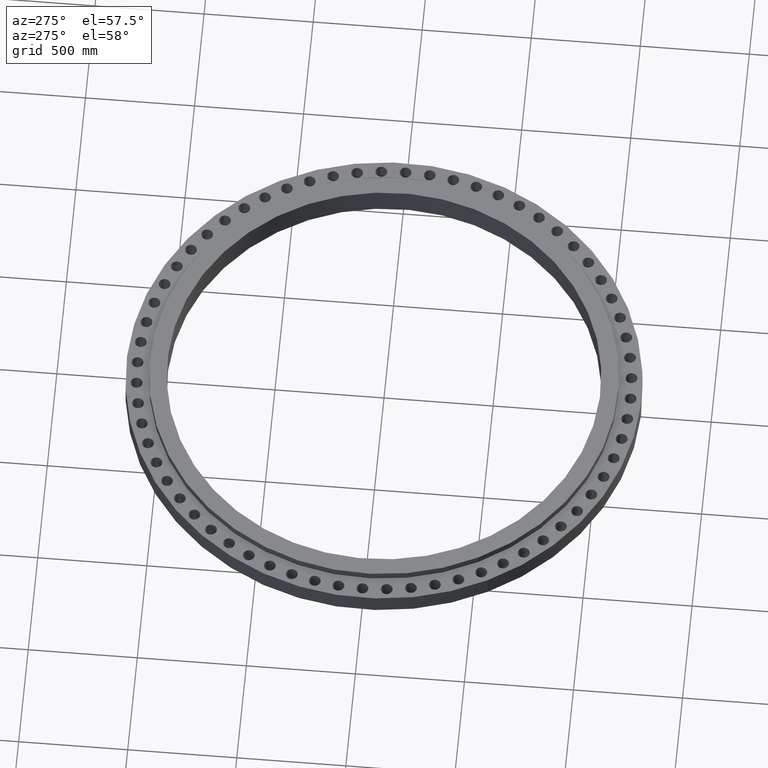
[diagram: clean part render]
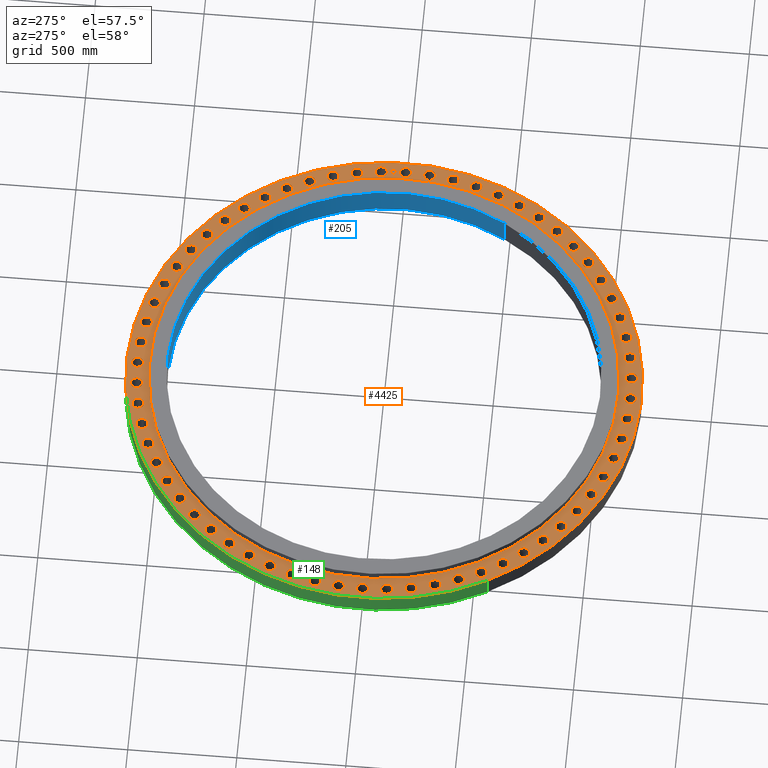
[diagram: same view with three faces highlighted in distinct colors, each labeled with its STEP entity id]
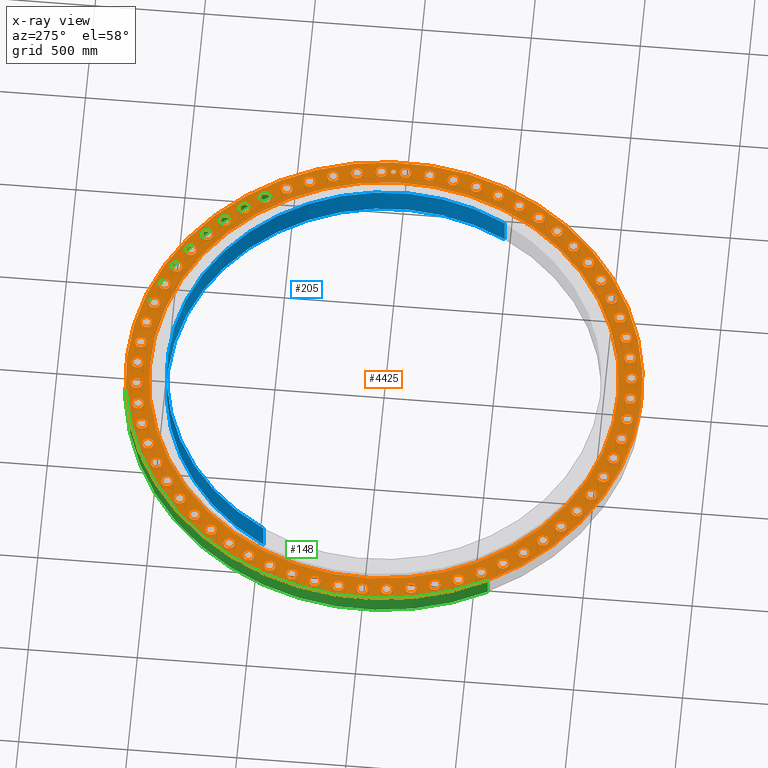
[diagram: x-ray of the same camera — body ghosted, the three highlighted faces saturated]
A machine part, auxiliary view with three faces highlighted in distinct colors.
The next image is the same camera in x-ray (body ghosted, the three faces saturated) — at least one of them is partly hidden behind the body in this view.
Their STEP definitions:

[orange] entity #4425 — the highlighted planar face has unit normal (0, 0, 1).
#65=AXIS2_PLACEMENT_3D('Circle Axis2P3D',#63,#64,$) ;
#82=AXIS2_PLACEMENT_3D('Circle Axis2P3D',#80,#81,$) ;
#108=AXIS2_PLACEMENT_3D('Circle Axis2P3D',#106,#107,$) ;
#134=AXIS2_PLACEMENT_3D('Circle Axis2P3D',#132,#133,$) ;
#255=AXIS2_PLACEMENT_3D('Circle Axis2P3D',#253,#254,$) ;
#267=AXIS2_PLACEMENT_3D('Circle Axis2P3D',#265,#266,$) ;
#1450=AXIS2_PLACEMENT_3D('Circle Axis2P3D',#1448,#1449,$) ;
#1462=AXIS2_PLACEMENT_3D('Circle Axis2P3D',#1460,#1461,$) ;
#1493=AXIS2_PLACEMENT_3D('Circle Axis2P3D',#1491,#1492,$) ;
#1505=AXIS2_PLACEMENT_3D('Circle Axis2P3D',#1503,#1504,$) ;
#1536=AXIS2_PLACEMENT_3D('Circle Axis2P3D',#1534,#1535,$) ;
#1548=AXIS2_PLACEMENT_3D('Circle Axis2P3D',#1546,#1547,$) ;
#1579=AXIS2_PLACEMENT_3D('Circle Axis2P3D',#1577,#1578,$) ;
#1591=AXIS2_PLACEMENT_3D('Circle Axis2P3D',#1589,#1590,$) ;
#1622=AXIS2_PLACEMENT_3D('Circle Axis2P3D',#1620,#1621,$) ;
#1634=AXIS2_PLACEMENT_3D('Circle Axis2P3D',#1632,#1633,$) ;
#1665=AXIS2_PLACEMENT_3D('Circle Axis2P3D',#1663,#1664,$) ;
#1677=AXIS2_PLACEMENT_3D('Circle Axis2P3D',#1675,#1676,$) ;
#1708=AXIS2_PLACEMENT_3D('Circle Axis2P3D',#1706,#1707,$) ;
#1720=AXIS2_PLACEMENT_3D('Circle Axis2P3D',#1718,#1719,$) ;
#1751=AXIS2_PLACEMENT_3D('Circle Axis2P3D',#1749,#1750,$) ;
#1763=AXIS2_PLACEMENT_3D('Circle Axis2P3D',#1761,#1762,$) ;
#1794=AXIS2_PLACEMENT_3D('Circle Axis2P3D',#1792,#1793,$) ;
#1806=AXIS2_PLACEMENT_3D('Circle Axis2P3D',#1804,#1805,$) ;
#1837=AXIS2_PLACEMENT_3D('Circle Axis2P3D',#1835,#1836,$) ;
#1849=AXIS2_PLACEMENT_3D('Circle Axis2P3D',#1847,#1848,$) ;
#1880=AXIS2_PLACEMENT_3D('Circle Axis2P3D',#1878,#1879,$) ;
#1892=AXIS2_PLACEMENT_3D('Circle Axis2P3D',#1890,#1891,$) ;
#1923=AXIS2_PLACEMENT_3D('Circle Axis2P3D',#1921,#1922,$) ;
#1935=AXIS2_PLACEMENT_3D('Circle Axis2P3D',#1933,#1934,$) ;
#1966=AXIS2_PLACEMENT_3D('Circle Axis2P3D',#1964,#1965,$) ;
#1978=AXIS2_PLACEMENT_3D('Circle Axis2P3D',#1976,#1977,$) ;
#2009=AXIS2_PLACEMENT_3D('Circle Axis2P3D',#2007,#2008,$) ;
#2021=AXIS2_PLACEMENT_3D('Circle Axis2P3D',#2019,#2020,$) ;
#2052=AXIS2_PLACEMENT_3D('Circle Axis2P3D',#2050,#2051,$) ;
#2064=AXIS2_PLACEMENT_3D('Circle Axis2P3D',#2062,#2063,$) ;
#2095=AXIS2_PLACEMENT_3D('Circle Axis2P3D',#2093,#2094,$) ;
#2107=AXIS2_PLACEMENT_3D('Circle Axis2P3D',#2105,#2106,$) ;
#2138=AXIS2_PLACEMENT_3D('Circle Axis2P3D',#2136,#2137,$) ;
#2150=AXIS2_PLACEMENT_3D('Circle Axis2P3D',#2148,#2149,$) ;
#2181=AXIS2_PLACEMENT_3D('Circle Axis2P3D',#2179,#2180,$) ;
#2193=AXIS2_PLACEMENT_3D('Circle Axis2P3D',#2191,#2192,$) ;
#2224=AXIS2_PLACEMENT_3D('Circle Axis2P3D',#2222,#2223,$) ;
#2236=AXIS2_PLACEMENT_3D('Circle Axis2P3D',#2234,#2235,$) ;
#2267=AXIS2_PLACEMENT_3D('Circle Axis2P3D',#2265,#2266,$) ;
#2279=AXIS2_PLACEMENT_3D('Circle Axis2P3D',#2277,#2278,$) ;
#2310=AXIS2_PLACEMENT_3D('Circle Axis2P3D',#2308,#2309,$) ;
#2322=AXIS2_PLACEMENT_3D('Circle Axis2P3D',#2320,#2321,$) ;
#2353=AXIS2_PLACEMENT_3D('Circle Axis2P3D',#2351,#2352,$) ;
#2365=AXIS2_PLACEMENT_3D('Circle Axis2P3D',#2363,#2364,$) ;
#2396=AXIS2_PLACEMENT_3D('Circle Axis2P3D',#2394,#2395,$) ;
#2408=AXIS2_PLACEMENT_3D('Circle Axis2P3D',#2406,#2407,$) ;
#2439=AXIS2_PLACEMENT_3D('Circle Axis2P3D',#2437,#2438,$) ;
#2451=AXIS2_PLACEMENT_3D('Circle Axis2P3D',#2449,#2450,$) ;
#2482=AXIS2_PLACEMENT_3D('Circle Axis2P3D',#2480,#2481,$) ;
#2494=AXIS2_PLACEMENT_3D('Circle Axis2P3D',#2492,#2493,$) ;
#2525=AXIS2_PLACEMENT_3D('Circle Axis2P3D',#2523,#2524,$) ;
#2537=AXIS2_PLACEMENT_3D('Circle Axis2P3D',#2535,#2536,$) ;
#2568=AXIS2_PLACEMENT_3D('Circle Axis2P3D',#2566,#2567,$) ;
#2580=AXIS2_PLACEMENT_3D('Circle Axis2P3D',#2578,#2579,$) ;
#2611=AXIS2_PLACEMENT_3D('Circle Axis2P3D',#2609,#2610,$) ;
#2623=AXIS2_PLACEMENT_3D('Circle Axis2P3D',#2621,#2622,$) ;
#2654=AXIS2_PLACEMENT_3D('Circle Axis2P3D',#2652,#2653,$) ;
#2666=AXIS2_PLACEMENT_3D('Circle Axis2P3D',#2664,#2665,$) ;
#2697=AXIS2_PLACEMENT_3D('Circle Axis2P3D',#2695,#2696,$) ;
#2709=AXIS2_PLACEMENT_3D('Circle Axis2P3D',#2707,#2708,$) ;
#2740=AXIS2_PLACEMENT_3D('Circle Axis2P3D',#2738,#2739,$) ;
#2752=AXIS2_PLACEMENT_3D('Circle Axis2P3D',#2750,#2751,$) ;
#2783=AXIS2_PLACEMENT_3D('Circle Axis2P3D',#2781,#2782,$) ;
#2795=AXIS2_PLACEMENT_3D('Circle Axis2P3D',#2793,#2794,$) ;
#2826=AXIS2_PLACEMENT_3D('Circle Axis2P3D',#2824,#2825,$) ;
#2838=AXIS2_PLACEMENT_3D('Circle Axis2P3D',#2836,#2837,$) ;
#2869=AXIS2_PLACEMENT_3D('Circle Axis2P3D',#2867,#2868,$) ;
#2881=AXIS2_PLACEMENT_3D('Circle Axis2P3D',#2879,#2880,$) ;
#2912=AXIS2_PLACEMENT_3D('Circle Axis2P3D',#2910,#2911,$) ;
#2924=AXIS2_PLACEMENT_3D('Circle Axis2P3D',#2922,#2923,$) ;
#2955=AXIS2_PLACEMENT_3D('Circle Axis2P3D',#2953,#2954,$) ;
#2967=AXIS2_PLACEMENT_3D('Circle Axis2P3D',#2965,#2966,$) ;
#2998=AXIS2_PLACEMENT_3D('Circle Axis2P3D',#2996,#2997,$) ;
#3010=AXIS2_PLACEMENT_3D('Circle Axis2P3D',#3008,#3009,$) ;
#3041=AXIS2_PLACEMENT_3D('Circle Axis2P3D',#3039,#3040,$) ;
#3053=AXIS2_PLACEMENT_3D('Circle Axis2P3D',#3051,#3052,$) ;
#3084=AXIS2_PLACEMENT_3D('Circle Axis2P3D',#3082,#3083,$) ;
#3096=AXIS2_PLACEMENT_3D('Circle Axis2P3D',#3094,#3095,$) ;
#3127=AXIS2_PLACEMENT_3D('Circle Axis2P3D',#3125,#3126,$) ;
#3139=AXIS2_PLACEMENT_3D('Circle Axis2P3D',#3137,#3138,$) ;
#3170=AXIS2_PLACEMENT_3D('Circle Axis2P3D',#3168,#3169,$) ;
#3182=AXIS2_PLACEMENT_3D('Circle Axis2P3D',#3180,#3181,$) ;
#3213=AXIS2_PLACEMENT_3D('Circle Axis2P3D',#3211,#3212,$) ;
#3225=AXIS2_PLACEMENT_3D('Circle Axis2P3D',#3223,#3224,$) ;
#3256=AXIS2_PLACEMENT_3D('Circle Axis2P3D',#3254,#3255,$) ;
#3268=AXIS2_PLACEMENT_3D('Circle Axis2P3D',#3266,#3267,$) ;
#3299=AXIS2_PLACEMENT_3D('Circle Axis2P3D',#3297,#3298,$) ;
#3311=AXIS2_PLACEMENT_3D('Circle Axis2P3D',#3309,#3310,$) ;
#3342=AXIS2_PLACEMENT_3D('Circle Axis2P3D',#3340,#3341,$) ;
#3354=AXIS2_PLACEMENT_3D('Circle Axis2P3D',#3352,#3353,$) ;
#3385=AXIS2_PLACEMENT_3D('Circle Axis2P3D',#3383,#3384,$) ;
#3397=AXIS2_PLACEMENT_3D('Circle Axis2P3D',#3395,#3396,$) ;
#3428=AXIS2_PLACEMENT_3D('Circle Axis2P3D',#3426,#3427,$) ;
#3440=AXIS2_PLACEMENT_3D('Circle Axis2P3D',#3438,#3439,$) ;
#3471=AXIS2_PLACEMENT_3D('Circle Axis2P3D',#3469,#3470,$) ;
#3483=AXIS2_PLACEMENT_3D('Circle Axis2P3D',#3481,#3482,$) ;
#3514=AXIS2_PLACEMENT_3D('Circle Axis2P3D',#3512,#3513,$) ;
#3526=AXIS2_PLACEMENT_3D('Circle Axis2P3D',#3524,#3525,$) ;
#3557=AXIS2_PLACEMENT_3D('Circle Axis2P3D',#3555,#3556,$) ;
#3569=AXIS2_PLACEMENT_3D('Circle Axis2P3D',#3567,#3568,$) ;
#3600=AXIS2_PLACEMENT_3D('Circle Axis2P3D',#3598,#3599,$) ;
#3612=AXIS2_PLACEMENT_3D('Circle Axis2P3D',#3610,#3611,$) ;
#3643=AXIS2_PLACEMENT_3D('Circle Axis2P3D',#3641,#3642,$) ;
#3655=AXIS2_PLACEMENT_3D('Circle Axis2P3D',#3653,#3654,$) ;
#3686=AXIS2_PLACEMENT_3D('Circle Axis2P3D',#3684,#3685,$) ;
#3698=AXIS2_PLACEMENT_3D('Circle Axis2P3D',#3696,#3697,$) ;
#3729=AXIS2_PLACEMENT_3D('Circle Axis2P3D',#3727,#3728,$) ;
#3741=AXIS2_PLACEMENT_3D('Circle Axis2P3D',#3739,#3740,$) ;
#3772=AXIS2_PLACEMENT_3D('Circle Axis2P3D',#3770,#3771,$) ;
#3784=AXIS2_PLACEMENT_3D('Circle Axis2P3D',#3782,#3783,$) ;
#3815=AXIS2_PLACEMENT_3D('Circle Axis2P3D',#3813,#3814,$) ;
#3827=AXIS2_PLACEMENT_3D('Circle Axis2P3D',#3825,#3826,$) ;
#3858=AXIS2_PLACEMENT_3D('Circle Axis2P3D',#3856,#3857,$) ;
#3870=AXIS2_PLACEMENT_3D('Circle Axis2P3D',#3868,#3869,$) ;
#3901=AXIS2_PLACEMENT_3D('Circle Axis2P3D',#3899,#3900,$) ;
#3913=AXIS2_PLACEMENT_3D('Circle Axis2P3D',#3911,#3912,$) ;
#3944=AXIS2_PLACEMENT_3D('Circle Axis2P3D',#3942,#3943,$) ;
#3956=AXIS2_PLACEMENT_3D('Circle Axis2P3D',#3954,#3955,$) ;
#3987=AXIS2_PLACEMENT_3D('Circle Axis2P3D',#3985,#3986,$) ;
#3999=AXIS2_PLACEMENT_3D('Circle Axis2P3D',#3997,#3998,$) ;
#4030=AXIS2_PLACEMENT_3D('Circle Axis2P3D',#4028,#4029,$) ;
#4042=AXIS2_PLACEMENT_3D('Circle Axis2P3D',#4040,#4041,$) ;
#4073=AXIS2_PLACEMENT_3D('Circle Axis2P3D',#4071,#4072,$) ;
#4085=AXIS2_PLACEMENT_3D('Circle Axis2P3D',#4083,#4084,$) ;
#4116=AXIS2_PLACEMENT_3D('Circle Axis2P3D',#4114,#4115,$) ;
#4128=AXIS2_PLACEMENT_3D('Circle Axis2P3D',#4126,#4127,$) ;
#4141=AXIS2_PLACEMENT_3D('Plane Axis2P3D',#4138,#4139,#4140) ;
#4409=AXIS2_PLACEMENT_3D('Circle Axis2P3D',#4407,#4408,$) ;
#4418=AXIS2_PLACEMENT_3D('Circle Axis2P3D',#4416,#4417,$) ;
#46=CARTESIAN_POINT('Vertex',(43.5675685282,0.509389634769,3.87500000002)) ;
#60=CARTESIAN_POINT('Vertex',(45.4324314722,-0.509389634769,3.87500000002)) ;
#63=CARTESIAN_POINT('Axis2P3D Location',(44.5000000002,0.,3.87500000002)) ;
#80=CARTESIAN_POINT('Axis2P3D Location',(44.5000000002,0.,3.87500000002)) ;
#103=CARTESIAN_POINT('Vertex',(40.8075891281,22.2932875452,3.87500000002)) ;
#106=CARTESIAN_POINT('Axis2P3D Location',(0.,0.,3.87500000002)) ;
#110=CARTESIAN_POINT('Vertex',(-40.8075891281,-22.2932875452,3.87500000002)) ;
#132=CARTESIAN_POINT('Axis2P3D Location',(0.,0.,3.87500000002)) ;
#243=CARTESIAN_POINT('Vertex',(37.07786324,20.2557290061,3.87500000002)) ;
#250=CARTESIAN_POINT('Vertex',(-37.07786324,-20.2557290061,3.87500000002)) ;
#253=CARTESIAN_POINT('Axis2P3D Location',(0.,0.,3.87500000002)) ;
#265=CARTESIAN_POINT('Axis2P3D Location',(0.,0.,3.87500000002)) ;
#1438=CARTESIAN_POINT('Vertex',(43.3078498622,4.77730526269,3.87500000002)) ;
#1445=CARTESIAN_POINT('Vertex',(45.263590812,3.94622022668,3.87500000002)) ;
#1448=CARTESIAN_POINT('Axis2P3D Location',(44.2857203371,4.36176274468,3.87500000002)) ;
#1460=CARTESIAN_POINT('Axis2P3D Location',(44.2857203371,4.36176274468,3.87500000002)) ;
#1481=CARTESIAN_POINT('Vertex',(42.6310529275,8.99921282939,3.87500000002)) ;
#1488=CARTESIAN_POINT('Vertex',(44.6588370287,8.36382583011,3.87500000002)) ;
#1491=CARTESIAN_POINT('Axis2P3D Location',(43.6449449781,8.68151932975,3.87500000002)) ;
#1503=CARTESIAN_POINT('Axis2P3D Location',(43.6449449781,8.68151932975,3.87500000002)) ;
#1524=CARTESIAN_POINT('Vertex',(41.5436956487,13.1344530571,3.87500000002)) ;
#1531=CARTESIAN_POINT('Vertex',(43.6239942319,12.7008832187,3.87500000002)) ;
#1534=CARTESIAN_POINT('Axis2P3D Location',(42.5838449403,12.9176681379,3.87500000002)) ;
#1546=CARTESIAN_POINT('Axis2P3D Location',(42.5838449403,12.9176681379,3.87500000002)) ;
#1567=CARTESIAN_POINT('Vertex',(40.0562498706,17.1432013218,3.87500000002)) ;
#1574=CARTESIAN_POINT('Vertex',(42.1690285232,16.9156241588,3.87500000002)) ;
#1577=CARTESIAN_POINT('Axis2P3D Location',(41.1126391969,17.0294127403,3.87500000002)) ;
#1589=CARTESIAN_POINT('Axis2P3D Location',(41.1126391969,17.0294127403,3.87500000002)) ;
#1610=CARTESIAN_POINT('Vertex',(38.1830405093,20.9868511864,3.87500000002)) ;
#1617=CARTESIAN_POINT('Vertex',(40.307952018,20.9674583913,3.87500000002)) ;
#1620=CARTESIAN_POINT('Axis2P3D Location',(39.2454962637,20.9771547888,3.87500000002)) ;
#1632=CARTESIAN_POINT('Axis2P3D Location',(39.2454962637,20.9771547888,3.87500000002)) ;
#1653=CARTESIAN_POINT('Vertex',(35.942107595,24.6283862014,3.87500000002)) ;
#1660=CARTESIAN_POINT('Vertex',(38.0586879002,24.8173645375,3.87500000002)) ;
#1663=CARTESIAN_POINT('Axis2P3D Location',(37.0003977476,24.7228753695,3.87500000002)) ;
#1675=CARTESIAN_POINT('Axis2P3D Location',(37.0003977476,24.7228753695,3.87500000002)) ;
#1696=CARTESIAN_POINT('Vertex',(33.3550325365,28.0327363941,3.87500000002)) ;
#1703=CARTESIAN_POINT('Vertex',(35.442897813,28.4282658967,3.87500000002)) ;
#1706=CARTESIAN_POINT('Axis2P3D Location',(34.3989651748,28.2305011454,3.87500000002)) ;
#1718=CARTESIAN_POINT('Axis2P3D Location',(34.3989651748,28.2305011454,3.87500000002)) ;
#1739=CARTESIAN_POINT('Vertex',(30.4467302811,31.1671160111,3.87500000002)) ;
#1746=CARTESIAN_POINT('Vertex',(32.4857732448,31.7653875148,3.87500000002)) ;
#1749=CARTESIAN_POINT('Axis2P3D Location',(31.4662517629,31.4662517629,3.87500000002)) ;
#1761=CARTESIAN_POINT('Axis2P3D Location',(31.4662517629,31.4662517629,3.87500000002)) ;
#1782=CARTESIAN_POINT('Vertex',(27.2452093691,34.0013392632,3.87500000002)) ;
#1789=CARTESIAN_POINT('Vertex',(29.2157929217,34.7965910864,3.87500000002)) ;
#1792=CARTESIAN_POINT('Axis2P3D Location',(28.2305011454,34.3989651748,3.87500000002)) ;
#1804=CARTESIAN_POINT('Axis2P3D Location',(28.2305011454,34.3989651748,3.87500000002)) ;
#1825=CARTESIAN_POINT('Vertex',(23.7813021972,36.5081110312,3.87500000002)) ;
#1832=CARTESIAN_POINT('Vertex',(25.6644485418,37.4926844641,3.87500000002)) ;
#1835=CARTESIAN_POINT('Axis2P3D Location',(24.7228753695,37.0003977476,3.87500000002)) ;
#1847=CARTESIAN_POINT('Axis2P3D Location',(24.7228753695,37.0003977476,3.87500000002)) ;
#1868=CARTESIAN_POINT('Vertex',(20.0883680849,38.6632897325,3.87500000002)) ;
#1875=CARTESIAN_POINT('Vertex',(21.8659414928,39.8277027948,3.87500000002)) ;
#1878=CARTESIAN_POINT('Axis2P3D Location',(20.9771547888,39.2454962637,3.87500000002)) ;
#1890=CARTESIAN_POINT('Axis2P3D Location',(20.9771547888,39.2454962637,3.87500000002)) ;
#1911=CARTESIAN_POINT('Vertex',(16.2019720065,40.4461198183,3.87500000002)) ;
#1918=CARTESIAN_POINT('Vertex',(17.8568534741,41.7791585755,3.87500000002)) ;
#1921=CARTESIAN_POINT('Axis2P3D Location',(17.0294127403,41.1126391969,3.87500000002)) ;
#1933=CARTESIAN_POINT('Axis2P3D Location',(17.0294127403,41.1126391969,3.87500000002)) ;
#1954=CARTESIAN_POINT('Vertex',(12.1595420808,41.8394316601,3.87500000002)) ;
#1961=CARTESIAN_POINT('Vertex',(13.6757941949,43.3282582204,3.87500000002)) ;
#1964=CARTESIAN_POINT('Axis2P3D Location',(12.9176681379,42.5838449403,3.87500000002)) ;
#1976=CARTESIAN_POINT('Axis2P3D Location',(12.9176681379,42.5838449403,3.87500000002)) ;
#1997=CARTESIAN_POINT('Vertex',(8.00000911785,42.8298069033,3.87500000002)) ;
#2004=CARTESIAN_POINT('Vertex',(9.36302954166,44.460083053,3.87500000002)) ;
#2007=CARTESIAN_POINT('Axis2P3D Location',(8.68151932975,43.6449449781,3.87500000002)) ;
#2019=CARTESIAN_POINT('Axis2P3D Location',(8.68151932975,43.6449449781,3.87500000002)) ;
#2040=CARTESIAN_POINT('Vertex',(3.7634316938,43.4077076928,3.87500000002)) ;
#2047=CARTESIAN_POINT('Vertex',(4.96009379557,45.1637329814,3.87500000002)) ;
#2050=CARTESIAN_POINT('Axis2P3D Location',(4.36176274468,44.2857203371,3.87500000002)) ;
#2062=CARTESIAN_POINT('Axis2P3D Location',(4.36176274468,44.2857203371,3.87500000002)) ;
#2083=CARTESIAN_POINT('Vertex',(-0.509389634769,43.5675685282,3.87500000002)) ;
#2090=CARTESIAN_POINT('Vertex',(0.509389634769,45.4324314722,3.87500000002)) ;
#2093=CARTESIAN_POINT('Axis2P3D Location',(-6.22688037753E-015,44.5000000002,3.87500000002)) ;
#2105=CARTESIAN_POINT('Axis2P3D Location',(-6.22688037753E-015,44.5000000002,3.87500000002)) ;
#2126=CARTESIAN_POINT('Vertex',(-4.77730526269,43.3078498622,3.87500000002)) ;
#2133=CARTESIAN_POINT('Vertex',(-3.94622022668,45.263590812,3.87500000002)) ;
#2136=CARTESIAN_POINT('Axis2P3D Location',(-4.36176274468,44.2857203371,3.87500000002)) ;
#2148=CARTESIAN_POINT('Axis2P3D Location',(-4.36176274468,44.2857203371,3.87500000002)) ;
#2169=CARTESIAN_POINT('Vertex',(-8.99921282939,42.6310529275,3.87500000002)) ;
#2176=CARTESIAN_POINT('Vertex',(-8.36382583011,44.6588370287,3.87500000002)) ;
#2179=CARTESIAN_POINT('Axis2P3D Location',(-8.68151932975,43.6449449781,3.87500000002)) ;
#2191=CARTESIAN_POINT('Axis2P3D Location',(-8.68151932975,43.6449449781,3.87500000002)) ;
#2212=CARTESIAN_POINT('Vertex',(-13.1344530571,41.5436956487,3.87500000002)) ;
#2219=CARTESIAN_POINT('Vertex',(-12.7008832187,43.6239942319,3.87500000002)) ;
#2222=CARTESIAN_POINT('Axis2P3D Location',(-12.9176681379,42.5838449403,3.87500000002)) ;
#2234=CARTESIAN_POINT('Axis2P3D Location',(-12.9176681379,42.5838449403,3.87500000002)) ;
#2255=CARTESIAN_POINT('Vertex',(-17.1432013218,40.0562498706,3.87500000002)) ;
#2262=CARTESIAN_POINT('Vertex',(-16.9156241588,42.1690285232,3.87500000002)) ;
#2265=CARTESIAN_POINT('Axis2P3D Location',(-17.0294127403,41.1126391969,3.87500000002)) ;
#2277=CARTESIAN_POINT('Axis2P3D Location',(-17.0294127403,41.1126391969,3.87500000002)) ;
#2298=CARTESIAN_POINT('Vertex',(-20.9868511864,38.1830405093,3.87500000002)) ;
#2305=CARTESIAN_POINT('Vertex',(-20.9674583913,40.307952018,3.87500000002)) ;
#2308=CARTESIAN_POINT('Axis2P3D Location',(-20.9771547888,39.2454962637,3.87500000002)) ;
#2320=CARTESIAN_POINT('Axis2P3D Location',(-20.9771547888,39.2454962637,3.87500000002)) ;
#2341=CARTESIAN_POINT('Vertex',(-24.6283862014,35.942107595,3.87500000002)) ;
#2348=CARTESIAN_POINT('Vertex',(-24.8173645375,38.0586879002,3.87500000002)) ;
#2351=CARTESIAN_POINT('Axis2P3D Location',(-24.7228753695,37.0003977476,3.87500000002)) ;
#2363=CARTESIAN_POINT('Axis2P3D Location',(-24.7228753695,37.0003977476,3.87500000002)) ;
#2384=CARTESIAN_POINT('Vertex',(-28.0327363941,33.3550325365,3.87500000002)) ;
#2391=CARTESIAN_POINT('Vertex',(-28.4282658967,35.442897813,3.87500000002)) ;
#2394=CARTESIAN_POINT('Axis2P3D Location',(-28.2305011454,34.3989651748,3.87500000002)) ;
#2406=CARTESIAN_POINT('Axis2P3D Location',(-28.2305011454,34.3989651748,3.87500000002)) ;
#2427=CARTESIAN_POINT('Vertex',(-31.1671160111,30.4467302811,3.87500000002)) ;
#2434=CARTESIAN_POINT('Vertex',(-31.7653875148,32.4857732448,3.87500000002)) ;
#2437=CARTESIAN_POINT('Axis2P3D Location',(-31.4662517629,31.4662517629,3.87500000002)) ;
#2449=CARTESIAN_POINT('Axis2P3D Location',(-31.4662517629,31.4662517629,3.87500000002)) ;
#2470=CARTESIAN_POINT('Vertex',(-34.0013392632,27.2452093691,3.87500000002)) ;
#2477=CARTESIAN_POINT('Vertex',(-34.7965910864,29.2157929217,3.87500000002)) ;
#2480=CARTESIAN_POINT('Axis2P3D Location',(-34.3989651748,28.2305011454,3.87500000002)) ;
#2492=CARTESIAN_POINT('Axis2P3D Location',(-34.3989651748,28.2305011454,3.87500000002)) ;
#2513=CARTESIAN_POINT('Vertex',(-36.5081110312,23.7813021972,3.87500000002)) ;
#2520=CARTESIAN_POINT('Vertex',(-37.4926844641,25.6644485418,3.87500000002)) ;
#2523=CARTESIAN_POINT('Axis2P3D Location',(-37.0003977476,24.7228753695,3.87500000002)) ;
#2535=CARTESIAN_POINT('Axis2P3D Location',(-37.0003977476,24.7228753695,3.87500000002)) ;
#2556=CARTESIAN_POINT('Vertex',(-38.6632897325,20.0883680849,3.87500000002)) ;
#2563=CARTESIAN_POINT('Vertex',(-39.8277027948,21.8659414928,3.87500000002)) ;
#2566=CARTESIAN_POINT('Axis2P3D Location',(-39.2454962637,20.9771547888,3.87500000002)) ;
#2578=CARTESIAN_POINT('Axis2P3D Location',(-39.2454962637,20.9771547888,3.87500000002)) ;
#2599=CARTESIAN_POINT('Vertex',(-40.4461198183,16.2019720065,3.87500000002)) ;
#2606=CARTESIAN_POINT('Vertex',(-41.7791585755,17.8568534741,3.87500000002)) ;
#2609=CARTESIAN_POINT('Axis2P3D Location',(-41.1126391969,17.0294127403,3.87500000002)) ;
#2621=CARTESIAN_POINT('Axis2P3D Location',(-41.1126391969,17.0294127403,3.87500000002)) ;
#2642=CARTESIAN_POINT('Vertex',(-41.8394316601,12.1595420808,3.87500000002)) ;
#2649=CARTESIAN_POINT('Vertex',(-43.3282582204,13.6757941949,3.87500000002)) ;
#2652=CARTESIAN_POINT('Axis2P3D Location',(-42.5838449403,12.9176681379,3.87500000002)) ;
#2664=CARTESIAN_POINT('Axis2P3D Location',(-42.5838449403,12.9176681379,3.87500000002)) ;
#2685=CARTESIAN_POINT('Vertex',(-42.8298069033,8.00000911785,3.87500000002)) ;
#2692=CARTESIAN_POINT('Vertex',(-44.460083053,9.36302954166,3.87500000002)) ;
#2695=CARTESIAN_POINT('Axis2P3D Location',(-43.6449449781,8.68151932975,3.87500000002)) ;
#2707=CARTESIAN_POINT('Axis2P3D Location',(-43.6449449781,8.68151932975,3.87500000002)) ;
#2728=CARTESIAN_POINT('Vertex',(-43.4077076928,3.7634316938,3.87500000002)) ;
#2735=CARTESIAN_POINT('Vertex',(-45.1637329814,4.96009379557,3.87500000002)) ;
#2738=CARTESIAN_POINT('Axis2P3D Location',(-44.2857203371,4.36176274468,3.87500000002)) ;
#2750=CARTESIAN_POINT('Axis2P3D Location',(-44.2857203371,4.36176274468,3.87500000002)) ;
#2771=CARTESIAN_POINT('Vertex',(-43.5675685282,-0.509389634769,3.87500000002)) ;
#2778=CARTESIAN_POINT('Vertex',(-45.4324314722,0.509389634769,3.87500000002)) ;
#2781=CARTESIAN_POINT('Axis2P3D Location',(-44.5000000002,5.44967825623E-015,3.87500000002)) ;
#2793=CARTESIAN_POINT('Axis2P3D Location',(-44.5000000002,5.44967825623E-015,3.87500000002)) ;
#2814=CARTESIAN_POINT('Vertex',(-43.3078498622,-4.77730526269,3.87500000002)) ;
#2821=CARTESIAN_POINT('Vertex',(-45.263590812,-3.94622022668,3.87500000002)) ;
#2824=CARTESIAN_POINT('Axis2P3D Location',(-44.2857203371,-4.36176274468,3.87500000002)) ;
#2836=CARTESIAN_POINT('Axis2P3D Location',(-44.2857203371,-4.36176274468,3.87500000002)) ;
#2857=CARTESIAN_POINT('Vertex',(-42.6310529275,-8.99921282939,3.87500000002)) ;
#2864=CARTESIAN_POINT('Vertex',(-44.6588370287,-8.36382583011,3.87500000002)) ;
#2867=CARTESIAN_POINT('Axis2P3D Location',(-43.6449449781,-8.68151932975,3.87500000002)) ;
#2879=CARTESIAN_POINT('Axis2P3D Location',(-43.6449449781,-8.68151932975,3.87500000002)) ;
#2900=CARTESIAN_POINT('Vertex',(-41.5436956487,-13.1344530571,3.87500000002)) ;
#2907=CARTESIAN_POINT('Vertex',(-43.6239942319,-12.7008832187,3.87500000002)) ;
#2910=CARTESIAN_POINT('Axis2P3D Location',(-42.5838449403,-12.9176681379,3.87500000002)) ;
#2922=CARTESIAN_POINT('Axis2P3D Location',(-42.5838449403,-12.9176681379,3.87500000002)) ;
#2943=CARTESIAN_POINT('Vertex',(-40.0562498706,-17.1432013218,3.87500000002)) ;
#2950=CARTESIAN_POINT('Vertex',(-42.1690285232,-16.9156241588,3.87500000002)) ;
#2953=CARTESIAN_POINT('Axis2P3D Location',(-41.1126391969,-17.0294127403,3.87500000002)) ;
#2965=CARTESIAN_POINT('Axis2P3D Location',(-41.1126391969,-17.0294127403,3.87500000002)) ;
#2986=CARTESIAN_POINT('Vertex',(-38.1830405093,-20.9868511864,3.87500000002)) ;
#2993=CARTESIAN_POINT('Vertex',(-40.307952018,-20.9674583913,3.87500000002)) ;
#2996=CARTESIAN_POINT('Axis2P3D Location',(-39.2454962637,-20.9771547888,3.87500000002)) ;
#3008=CARTESIAN_POINT('Axis2P3D Location',(-39.2454962637,-20.9771547888,3.87500000002)) ;
#3029=CARTESIAN_POINT('Vertex',(-35.942107595,-24.6283862014,3.87500000002)) ;
#3036=CARTESIAN_POINT('Vertex',(-38.0586879002,-24.8173645375,3.87500000002)) ;
#3039=CARTESIAN_POINT('Axis2P3D Location',(-37.0003977476,-24.7228753695,3.87500000002)) ;
#3051=CARTESIAN_POINT('Axis2P3D Location',(-37.0003977476,-24.7228753695,3.87500000002)) ;
#3072=CARTESIAN_POINT('Vertex',(-33.3550325365,-28.0327363941,3.87500000002)) ;
#3079=CARTESIAN_POINT('Vertex',(-35.442897813,-28.4282658967,3.87500000002)) ;
#3082=CARTESIAN_POINT('Axis2P3D Location',(-34.3989651748,-28.2305011454,3.87500000002)) ;
#3094=CARTESIAN_POINT('Axis2P3D Location',(-34.3989651748,-28.2305011454,3.87500000002)) ;
#3115=CARTESIAN_POINT('Vertex',(-30.4467302811,-31.1671160111,3.87500000002)) ;
#3122=CARTESIAN_POINT('Vertex',(-32.4857732448,-31.7653875148,3.87500000002)) ;
#3125=CARTESIAN_POINT('Axis2P3D Location',(-31.4662517629,-31.4662517629,3.87500000002)) ;
#3137=CARTESIAN_POINT('Axis2P3D Location',(-31.4662517629,-31.4662517629,3.87500000002)) ;
#3158=CARTESIAN_POINT('Vertex',(-27.2452093691,-34.0013392632,3.87500000002)) ;
#3165=CARTESIAN_POINT('Vertex',(-29.2157929217,-34.7965910864,3.87500000002)) ;
#3168=CARTESIAN_POINT('Axis2P3D Location',(-28.2305011454,-34.3989651748,3.87500000002)) ;
#3180=CARTESIAN_POINT('Axis2P3D Location',(-28.2305011454,-34.3989651748,3.87500000002)) ;
#3201=CARTESIAN_POINT('Vertex',(-23.7813021972,-36.5081110312,3.87500000002)) ;
#3208=CARTESIAN_POINT('Vertex',(-25.6644485418,-37.4926844641,3.87500000002)) ;
#3211=CARTESIAN_POINT('Axis2P3D Location',(-24.7228753695,-37.0003977476,3.87500000002)) ;
#3223=CARTESIAN_POINT('Axis2P3D Location',(-24.7228753695,-37.0003977476,3.87500000002)) ;
#3244=CARTESIAN_POINT('Vertex',(-20.0883680849,-38.6632897325,3.87500000002)) ;
#3251=CARTESIAN_POINT('Vertex',(-21.8659414928,-39.8277027948,3.87500000002)) ;
#3254=CARTESIAN_POINT('Axis2P3D Location',(-20.9771547888,-39.2454962637,3.87500000002)) ;
#3266=CARTESIAN_POINT('Axis2P3D Location',(-20.9771547888,-39.2454962637,3.87500000002)) ;
#3287=CARTESIAN_POINT('Vertex',(-16.2019720065,-40.4461198183,3.87500000002)) ;
#3294=CARTESIAN_POINT('Vertex',(-17.8568534741,-41.7791585755,3.87500000002)) ;
#3297=CARTESIAN_POINT('Axis2P3D Location',(-17.0294127403,-41.1126391969,3.87500000002)) ;
#3309=CARTESIAN_POINT('Axis2P3D Location',(-17.0294127403,-41.1126391969,3.87500000002)) ;
#3330=CARTESIAN_POINT('Vertex',(-12.1595420808,-41.8394316601,3.87500000002)) ;
#3337=CARTESIAN_POINT('Vertex',(-13.6757941949,-43.3282582204,3.87500000002)) ;
#3340=CARTESIAN_POINT('Axis2P3D Location',(-12.9176681379,-42.5838449403,3.87500000002)) ;
#3352=CARTESIAN_POINT('Axis2P3D Location',(-12.9176681379,-42.5838449403,3.87500000002)) ;
#3373=CARTESIAN_POINT('Vertex',(-8.00000911785,-42.8298069033,3.87500000002)) ;
#3380=CARTESIAN_POINT('Vertex',(-9.36302954166,-44.460083053,3.87500000002)) ;
#3383=CARTESIAN_POINT('Axis2P3D Location',(-8.68151932975,-43.6449449781,3.87500000002)) ;
#3395=CARTESIAN_POINT('Axis2P3D Location',(-8.68151932975,-43.6449449781,3.87500000002)) ;
#3416=CARTESIAN_POINT('Vertex',(-3.7634316938,-43.4077076928,3.87500000002)) ;
#3423=CARTESIAN_POINT('Vertex',(-4.96009379557,-45.1637329814,3.87500000002)) ;
#3426=CARTESIAN_POINT('Axis2P3D Location',(-4.36176274468,-44.2857203371,3.87500000002)) ;
#3438=CARTESIAN_POINT('Axis2P3D Location',(-4.36176274468,-44.2857203371,3.87500000002)) ;
#3459=CARTESIAN_POINT('Vertex',(0.509389634769,-43.5675685282,3.87500000002)) ;
#3466=CARTESIAN_POINT('Vertex',(-0.509389634769,-45.4324314722,3.87500000002)) ;
#3469=CARTESIAN_POINT('Axis2P3D Location',(-8.17451738434E-015,-44.5000000002,3.87500000002)) ;
#3481=CARTESIAN_POINT('Axis2P3D Location',(-8.17451738434E-015,-44.5000000002,3.87500000002)) ;
#3502=CARTESIAN_POINT('Vertex',(4.77730526269,-43.3078498622,3.87500000002)) ;
#3509=CARTESIAN_POINT('Vertex',(3.94622022668,-45.263590812,3.87500000002)) ;
#3512=CARTESIAN_POINT('Axis2P3D Location',(4.36176274468,-44.2857203371,3.87500000002)) ;
#3524=CARTESIAN_POINT('Axis2P3D Location',(4.36176274468,-44.2857203371,3.87500000002)) ;
#3545=CARTESIAN_POINT('Vertex',(8.99921282939,-42.6310529275,3.87500000002)) ;
#3552=CARTESIAN_POINT('Vertex',(8.36382583011,-44.6588370287,3.87500000002)) ;
#3555=CARTESIAN_POINT('Axis2P3D Location',(8.68151932975,-43.6449449781,3.87500000002)) ;
#3567=CARTESIAN_POINT('Axis2P3D Location',(8.68151932975,-43.6449449781,3.87500000002)) ;
#3588=CARTESIAN_POINT('Vertex',(13.1344530571,-41.5436956487,3.87500000002)) ;
#3595=CARTESIAN_POINT('Vertex',(12.7008832187,-43.6239942319,3.87500000002)) ;
#3598=CARTESIAN_POINT('Axis2P3D Location',(12.9176681379,-42.5838449403,3.87500000002)) ;
#3610=CARTESIAN_POINT('Axis2P3D Location',(12.9176681379,-42.5838449403,3.87500000002)) ;
#3631=CARTESIAN_POINT('Vertex',(17.1432013218,-40.0562498706,3.87500000002)) ;
#3638=CARTESIAN_POINT('Vertex',(16.9156241588,-42.1690285232,3.87500000002)) ;
#3641=CARTESIAN_POINT('Axis2P3D Location',(17.0294127403,-41.1126391969,3.87500000002)) ;
#3653=CARTESIAN_POINT('Axis2P3D Location',(17.0294127403,-41.1126391969,3.87500000002)) ;
#3674=CARTESIAN_POINT('Vertex',(20.9868511864,-38.1830405093,3.87500000002)) ;
#3681=CARTESIAN_POINT('Vertex',(20.9674583913,-40.307952018,3.87500000002)) ;
#3684=CARTESIAN_POINT('Axis2P3D Location',(20.9771547888,-39.2454962637,3.87500000002)) ;
#3696=CARTESIAN_POINT('Axis2P3D Location',(20.9771547888,-39.2454962637,3.87500000002)) ;
#3717=CARTESIAN_POINT('Vertex',(24.6283862014,-35.942107595,3.87500000002)) ;
#3724=CARTESIAN_POINT('Vertex',(24.8173645375,-38.0586879002,3.87500000002)) ;
#3727=CARTESIAN_POINT('Axis2P3D Location',(24.7228753695,-37.0003977476,3.87500000002)) ;
#3739=CARTESIAN_POINT('Axis2P3D Location',(24.7228753695,-37.0003977476,3.87500000002)) ;
#3760=CARTESIAN_POINT('Vertex',(28.0327363941,-33.3550325365,3.87500000002)) ;
#3767=CARTESIAN_POINT('Vertex',(28.4282658967,-35.442897813,3.87500000002)) ;
#3770=CARTESIAN_POINT('Axis2P3D Location',(28.2305011454,-34.3989651748,3.87500000002)) ;
#3782=CARTESIAN_POINT('Axis2P3D Location',(28.2305011454,-34.3989651748,3.87500000002)) ;
#3803=CARTESIAN_POINT('Vertex',(31.1671160111,-30.4467302811,3.87500000002)) ;
#3810=CARTESIAN_POINT('Vertex',(31.7653875148,-32.4857732448,3.87500000002)) ;
#3813=CARTESIAN_POINT('Axis2P3D Location',(31.4662517629,-31.4662517629,3.87500000002)) ;
#3825=CARTESIAN_POINT('Axis2P3D Location',(31.4662517629,-31.4662517629,3.87500000002)) ;
#3846=CARTESIAN_POINT('Vertex',(34.0013392632,-27.2452093691,3.87500000002)) ;
#3853=CARTESIAN_POINT('Vertex',(34.7965910864,-29.2157929217,3.87500000002)) ;
#3856=CARTESIAN_POINT('Axis2P3D Location',(34.3989651748,-28.2305011454,3.87500000002)) ;
#3868=CARTESIAN_POINT('Axis2P3D Location',(34.3989651748,-28.2305011454,3.87500000002)) ;
#3889=CARTESIAN_POINT('Vertex',(36.5081110312,-23.7813021972,3.87500000002)) ;
#3896=CARTESIAN_POINT('Vertex',(37.4926844641,-25.6644485418,3.87500000002)) ;
#3899=CARTESIAN_POINT('Axis2P3D Location',(37.0003977476,-24.7228753695,3.87500000002)) ;
#3911=CARTESIAN_POINT('Axis2P3D Location',(37.0003977476,-24.7228753695,3.87500000002)) ;
#3932=CARTESIAN_POINT('Vertex',(38.6632897325,-20.0883680849,3.87500000002)) ;
#3939=CARTESIAN_POINT('Vertex',(39.8277027948,-21.8659414928,3.87500000002)) ;
#3942=CARTESIAN_POINT('Axis2P3D Location',(39.2454962637,-20.9771547888,3.87500000002)) ;
#3954=CARTESIAN_POINT('Axis2P3D Location',(39.2454962637,-20.9771547888,3.87500000002)) ;
#3975=CARTESIAN_POINT('Vertex',(40.4461198183,-16.2019720065,3.87500000002)) ;
#3982=CARTESIAN_POINT('Vertex',(41.7791585755,-17.8568534741,3.87500000002)) ;
#3985=CARTESIAN_POINT('Axis2P3D Location',(41.1126391969,-17.0294127403,3.87500000002)) ;
#3997=CARTESIAN_POINT('Axis2P3D Location',(41.1126391969,-17.0294127403,3.87500000002)) ;
#4018=CARTESIAN_POINT('Vertex',(41.8394316601,-12.1595420808,3.87500000002)) ;
#4025=CARTESIAN_POINT('Vertex',(43.3282582204,-13.6757941949,3.87500000002)) ;
#4028=CARTESIAN_POINT('Axis2P3D Location',(42.5838449403,-12.9176681379,3.87500000002)) ;
#4040=CARTESIAN_POINT('Axis2P3D Location',(42.5838449403,-12.9176681379,3.87500000002)) ;
#4061=CARTESIAN_POINT('Vertex',(42.8298069033,-8.00000911785,3.87500000002)) ;
#4068=CARTESIAN_POINT('Vertex',(44.460083053,-9.36302954166,3.87500000002)) ;
#4071=CARTESIAN_POINT('Axis2P3D Location',(43.6449449781,-8.68151932975,3.87500000002)) ;
#4083=CARTESIAN_POINT('Axis2P3D Location',(43.6449449781,-8.68151932975,3.87500000002)) ;
#4104=CARTESIAN_POINT('Vertex',(43.4077076928,-3.7634316938,3.87500000002)) ;
#4111=CARTESIAN_POINT('Vertex',(45.1637329814,-4.96009379557,3.87500000002)) ;
#4114=CARTESIAN_POINT('Axis2P3D Location',(44.2857203371,-4.36176274468,3.87500000002)) ;
#4126=CARTESIAN_POINT('Axis2P3D Location',(44.2857203371,-4.36176274468,3.87500000002)) ;
#4138=CARTESIAN_POINT('Axis2P3D Location',(46.5000000002,0.,3.87500000002)) ;
#4407=CARTESIAN_POINT('Axis2P3D Location',(44.4463978013,2.18351150758,3.87500000002)) ;
#4411=CARTESIAN_POINT('Vertex',(44.4218639644,2.68290923069,3.87500000002)) ;
#4413=CARTESIAN_POINT('Vertex',(44.4709316382,1.68411378447,3.87500000002)) ;
#4416=CARTESIAN_POINT('Axis2P3D Location',(44.4463978013,2.18351150758,3.87500000002)) ;
#64=DIRECTION('Axis2P3D Direction',(0.,-0.,-0.0393700787402)) ;
#81=DIRECTION('Axis2P3D Direction',(0.,-0.,-0.0393700787402)) ;
#107=DIRECTION('Axis2P3D Direction',(0.,0.,0.0393700787402)) ;
#133=DIRECTION('Axis2P3D Direction',(0.,0.,0.0393700787402)) ;
#254=DIRECTION('Axis2P3D Direction',(0.,0.,0.0393700787402)) ;
#266=DIRECTION('Axis2P3D Direction',(0.,0.,0.0393700787402)) ;
#1449=DIRECTION('Axis2P3D Direction',(0.,0.,-0.0393700787402)) ;
#1461=DIRECTION('Axis2P3D Direction',(0.,0.,-0.0393700787402)) ;
#1492=DIRECTION('Axis2P3D Direction',(0.,0.,-0.0393700787402)) ;
#1504=DIRECTION('Axis2P3D Direction',(0.,0.,-0.0393700787402)) ;
#1535=DIRECTION('Axis2P3D Direction',(0.,0.,-0.0393700787402)) ;
#1547=DIRECTION('Axis2P3D Direction',(0.,0.,-0.0393700787402)) ;
#1578=DIRECTION('Axis2P3D Direction',(0.,0.,-0.0393700787402)) ;
#1590=DIRECTION('Axis2P3D Direction',(0.,0.,-0.0393700787402)) ;
#1621=DIRECTION('Axis2P3D Direction',(0.,0.,-0.0393700787402)) ;
#1633=DIRECTION('Axis2P3D Direction',(0.,0.,-0.0393700787402)) ;
#1664=DIRECTION('Axis2P3D Direction',(0.,0.,-0.0393700787402)) ;
#1676=DIRECTION('Axis2P3D Direction',(0.,0.,-0.0393700787402)) ;
#1707=DIRECTION('Axis2P3D Direction',(0.,0.,-0.0393700787402)) ;
#1719=DIRECTION('Axis2P3D Direction',(0.,0.,-0.0393700787402)) ;
#1750=DIRECTION('Axis2P3D Direction',(0.,0.,-0.0393700787402)) ;
#1762=DIRECTION('Axis2P3D Direction',(0.,0.,-0.0393700787402)) ;
#1793=DIRECTION('Axis2P3D Direction',(0.,0.,-0.0393700787402)) ;
#1805=DIRECTION('Axis2P3D Direction',(0.,0.,-0.0393700787402)) ;
#1836=DIRECTION('Axis2P3D Direction',(0.,0.,-0.0393700787402)) ;
#1848=DIRECTION('Axis2P3D Direction',(0.,0.,-0.0393700787402)) ;
#1879=DIRECTION('Axis2P3D Direction',(0.,0.,-0.0393700787402)) ;
#1891=DIRECTION('Axis2P3D Direction',(0.,0.,-0.0393700787402)) ;
#1922=DIRECTION('Axis2P3D Direction',(0.,0.,-0.0393700787402)) ;
#1934=DIRECTION('Axis2P3D Direction',(0.,0.,-0.0393700787402)) ;
#1965=DIRECTION('Axis2P3D Direction',(0.,0.,-0.0393700787402)) ;
#1977=DIRECTION('Axis2P3D Direction',(0.,0.,-0.0393700787402)) ;
#2008=DIRECTION('Axis2P3D Direction',(0.,0.,-0.0393700787402)) ;
#2020=DIRECTION('Axis2P3D Direction',(0.,0.,-0.0393700787402)) ;
#2051=DIRECTION('Axis2P3D Direction',(0.,0.,-0.0393700787402)) ;
#2063=DIRECTION('Axis2P3D Direction',(0.,0.,-0.0393700787402)) ;
#2094=DIRECTION('Axis2P3D Direction',(0.,0.,-0.0393700787402)) ;
#2106=DIRECTION('Axis2P3D Direction',(0.,0.,-0.0393700787402)) ;
#2137=DIRECTION('Axis2P3D Direction',(0.,0.,-0.0393700787402)) ;
#2149=DIRECTION('Axis2P3D Direction',(0.,0.,-0.0393700787402)) ;
#2180=DIRECTION('Axis2P3D Direction',(0.,0.,-0.0393700787402)) ;
#2192=DIRECTION('Axis2P3D Direction',(0.,0.,-0.0393700787402)) ;
#2223=DIRECTION('Axis2P3D Direction',(0.,0.,-0.0393700787402)) ;
#2235=DIRECTION('Axis2P3D Direction',(0.,0.,-0.0393700787402)) ;
#2266=DIRECTION('Axis2P3D Direction',(0.,0.,-0.0393700787402)) ;
#2278=DIRECTION('Axis2P3D Direction',(0.,0.,-0.0393700787402)) ;
#2309=DIRECTION('Axis2P3D Direction',(0.,0.,-0.0393700787402)) ;
#2321=DIRECTION('Axis2P3D Direction',(0.,0.,-0.0393700787402)) ;
#2352=DIRECTION('Axis2P3D Direction',(0.,0.,-0.0393700787402)) ;
#2364=DIRECTION('Axis2P3D Direction',(0.,0.,-0.0393700787402)) ;
#2395=DIRECTION('Axis2P3D Direction',(0.,0.,-0.0393700787402)) ;
#2407=DIRECTION('Axis2P3D Direction',(0.,0.,-0.0393700787402)) ;
#2438=DIRECTION('Axis2P3D Direction',(0.,0.,-0.0393700787402)) ;
#2450=DIRECTION('Axis2P3D Direction',(0.,0.,-0.0393700787402)) ;
#2481=DIRECTION('Axis2P3D Direction',(0.,0.,-0.0393700787402)) ;
#2493=DIRECTION('Axis2P3D Direction',(0.,0.,-0.0393700787402)) ;
#2524=DIRECTION('Axis2P3D Direction',(0.,0.,-0.0393700787402)) ;
#2536=DIRECTION('Axis2P3D Direction',(0.,0.,-0.0393700787402)) ;
#2567=DIRECTION('Axis2P3D Direction',(0.,0.,-0.0393700787402)) ;
#2579=DIRECTION('Axis2P3D Direction',(0.,0.,-0.0393700787402)) ;
#2610=DIRECTION('Axis2P3D Direction',(0.,0.,-0.0393700787402)) ;
#2622=DIRECTION('Axis2P3D Direction',(0.,0.,-0.0393700787402)) ;
#2653=DIRECTION('Axis2P3D Direction',(0.,0.,-0.0393700787402)) ;
#2665=DIRECTION('Axis2P3D Direction',(0.,0.,-0.0393700787402)) ;
#2696=DIRECTION('Axis2P3D Direction',(0.,0.,-0.0393700787402)) ;
#2708=DIRECTION('Axis2P3D Direction',(0.,0.,-0.0393700787402)) ;
#2739=DIRECTION('Axis2P3D Direction',(0.,0.,-0.0393700787402)) ;
#2751=DIRECTION('Axis2P3D Direction',(0.,0.,-0.0393700787402)) ;
#2782=DIRECTION('Axis2P3D Direction',(0.,0.,-0.0393700787402)) ;
#2794=DIRECTION('Axis2P3D Direction',(0.,0.,-0.0393700787402)) ;
#2825=DIRECTION('Axis2P3D Direction',(-0.,0.,-0.0393700787402)) ;
#2837=DIRECTION('Axis2P3D Direction',(-0.,0.,-0.0393700787402)) ;
#2868=DIRECTION('Axis2P3D Direction',(-0.,0.,-0.0393700787402)) ;
#2880=DIRECTION('Axis2P3D Direction',(-0.,0.,-0.0393700787402)) ;
#2911=DIRECTION('Axis2P3D Direction',(-0.,0.,-0.0393700787402)) ;
#2923=DIRECTION('Axis2P3D Direction',(-0.,0.,-0.0393700787402)) ;
#2954=DIRECTION('Axis2P3D Direction',(-0.,0.,-0.0393700787402)) ;
#2966=DIRECTION('Axis2P3D Direction',(-0.,0.,-0.0393700787402)) ;
#2997=DIRECTION('Axis2P3D Direction',(-0.,0.,-0.0393700787402)) ;
#3009=DIRECTION('Axis2P3D Direction',(-0.,0.,-0.0393700787402)) ;
#3040=DIRECTION('Axis2P3D Direction',(-0.,0.,-0.0393700787402)) ;
#3052=DIRECTION('Axis2P3D Direction',(-0.,0.,-0.0393700787402)) ;
#3083=DIRECTION('Axis2P3D Direction',(-0.,0.,-0.0393700787402)) ;
#3095=DIRECTION('Axis2P3D Direction',(-0.,0.,-0.0393700787402)) ;
#3126=DIRECTION('Axis2P3D Direction',(-0.,0.,-0.0393700787402)) ;
#3138=DIRECTION('Axis2P3D Direction',(-0.,0.,-0.0393700787402)) ;
#3169=DIRECTION('Axis2P3D Direction',(-0.,0.,-0.0393700787402)) ;
#3181=DIRECTION('Axis2P3D Direction',(-0.,0.,-0.0393700787402)) ;
#3212=DIRECTION('Axis2P3D Direction',(-0.,0.,-0.0393700787402)) ;
#3224=DIRECTION('Axis2P3D Direction',(-0.,0.,-0.0393700787402)) ;
#3255=DIRECTION('Axis2P3D Direction',(-0.,0.,-0.0393700787402)) ;
#3267=DIRECTION('Axis2P3D Direction',(-0.,0.,-0.0393700787402)) ;
#3298=DIRECTION('Axis2P3D Direction',(-0.,0.,-0.0393700787402)) ;
#3310=DIRECTION('Axis2P3D Direction',(-0.,0.,-0.0393700787402)) ;
#3341=DIRECTION('Axis2P3D Direction',(-0.,0.,-0.0393700787402)) ;
#3353=DIRECTION('Axis2P3D Direction',(-0.,0.,-0.0393700787402)) ;
#3384=DIRECTION('Axis2P3D Direction',(-0.,0.,-0.0393700787402)) ;
#3396=DIRECTION('Axis2P3D Direction',(-0.,0.,-0.0393700787402)) ;
#3427=DIRECTION('Axis2P3D Direction',(-0.,0.,-0.0393700787402)) ;
#3439=DIRECTION('Axis2P3D Direction',(-0.,0.,-0.0393700787402)) ;
#3470=DIRECTION('Axis2P3D Direction',(-0.,0.,-0.0393700787402)) ;
#3482=DIRECTION('Axis2P3D Direction',(-0.,0.,-0.0393700787402)) ;
#3513=DIRECTION('Axis2P3D Direction',(0.,-0.,-0.0393700787402)) ;
#3525=DIRECTION('Axis2P3D Direction',(0.,-0.,-0.0393700787402)) ;
#3556=DIRECTION('Axis2P3D Direction',(0.,-0.,-0.0393700787402)) ;
#3568=DIRECTION('Axis2P3D Direction',(0.,-0.,-0.0393700787402)) ;
#3599=DIRECTION('Axis2P3D Direction',(0.,-0.,-0.0393700787402)) ;
#3611=DIRECTION('Axis2P3D Direction',(0.,-0.,-0.0393700787402)) ;
#3642=DIRECTION('Axis2P3D Direction',(0.,-0.,-0.0393700787402)) ;
#3654=DIRECTION('Axis2P3D Direction',(0.,-0.,-0.0393700787402)) ;
#3685=DIRECTION('Axis2P3D Direction',(0.,-0.,-0.0393700787402)) ;
#3697=DIRECTION('Axis2P3D Direction',(0.,-0.,-0.0393700787402)) ;
#3728=DIRECTION('Axis2P3D Direction',(0.,-0.,-0.0393700787402)) ;
#3740=DIRECTION('Axis2P3D Direction',(0.,-0.,-0.0393700787402)) ;
#3771=DIRECTION('Axis2P3D Direction',(0.,-0.,-0.0393700787402)) ;
#3783=DIRECTION('Axis2P3D Direction',(0.,-0.,-0.0393700787402)) ;
#3814=DIRECTION('Axis2P3D Direction',(0.,-0.,-0.0393700787402)) ;
#3826=DIRECTION('Axis2P3D Direction',(0.,-0.,-0.0393700787402)) ;
#3857=DIRECTION('Axis2P3D Direction',(0.,-0.,-0.0393700787402)) ;
#3869=DIRECTION('Axis2P3D Direction',(0.,-0.,-0.0393700787402)) ;
#3900=DIRECTION('Axis2P3D Direction',(0.,-0.,-0.0393700787402)) ;
#3912=DIRECTION('Axis2P3D Direction',(0.,-0.,-0.0393700787402)) ;
#3943=DIRECTION('Axis2P3D Direction',(0.,-0.,-0.0393700787402)) ;
#3955=DIRECTION('Axis2P3D Direction',(0.,-0.,-0.0393700787402)) ;
#3986=DIRECTION('Axis2P3D Direction',(0.,-0.,-0.0393700787402)) ;
#3998=DIRECTION('Axis2P3D Direction',(0.,-0.,-0.0393700787402)) ;
#4029=DIRECTION('Axis2P3D Direction',(0.,-0.,-0.0393700787402)) ;
#4041=DIRECTION('Axis2P3D Direction',(0.,-0.,-0.0393700787402)) ;
#4072=DIRECTION('Axis2P3D Direction',(0.,-0.,-0.0393700787402)) ;
#4084=DIRECTION('Axis2P3D Direction',(0.,-0.,-0.0393700787402)) ;
#4115=DIRECTION('Axis2P3D Direction',(0.,-0.,-0.0393700787402)) ;
#4127=DIRECTION('Axis2P3D Direction',(0.,-0.,-0.0393700787402)) ;
#4139=DIRECTION('Axis2P3D Direction',(0.,0.,0.0393700787402)) ;
#4140=DIRECTION('Axis2P3D XDirection',(0.0393700787402,0.,0.)) ;
#4408=DIRECTION('Axis2P3D Direction',(0.,0.,0.0393700787402)) ;
#4417=DIRECTION('Axis2P3D Direction',(0.,0.,0.0393700787402)) ;
#4144=ORIENTED_EDGE('',*,*,#112,.T.) ;
#4145=ORIENTED_EDGE('',*,*,#136,.T.) ;
#4148=ORIENTED_EDGE('',*,*,#84,.F.) ;
#4149=ORIENTED_EDGE('',*,*,#67,.F.) ;
#4152=ORIENTED_EDGE('',*,*,#269,.F.) ;
#4153=ORIENTED_EDGE('',*,*,#257,.F.) ;
#4156=ORIENTED_EDGE('',*,*,#1452,.F.) ;
#4157=ORIENTED_EDGE('',*,*,#1464,.F.) ;
#4160=ORIENTED_EDGE('',*,*,#1495,.F.) ;
#4161=ORIENTED_EDGE('',*,*,#1507,.F.) ;
#4164=ORIENTED_EDGE('',*,*,#1538,.F.) ;
#4165=ORIENTED_EDGE('',*,*,#1550,.F.) ;
#4168=ORIENTED_EDGE('',*,*,#1581,.F.) ;
#4169=ORIENTED_EDGE('',*,*,#1593,.F.) ;
#4172=ORIENTED_EDGE('',*,*,#1624,.F.) ;
#4173=ORIENTED_EDGE('',*,*,#1636,.F.) ;
#4176=ORIENTED_EDGE('',*,*,#1667,.F.) ;
#4177=ORIENTED_EDGE('',*,*,#1679,.F.) ;
#4180=ORIENTED_EDGE('',*,*,#1710,.F.) ;
#4181=ORIENTED_EDGE('',*,*,#1722,.F.) ;
#4184=ORIENTED_EDGE('',*,*,#1753,.F.) ;
#4185=ORIENTED_EDGE('',*,*,#1765,.F.) ;
#4188=ORIENTED_EDGE('',*,*,#1796,.F.) ;
#4189=ORIENTED_EDGE('',*,*,#1808,.F.) ;
#4192=ORIENTED_EDGE('',*,*,#1839,.F.) ;
#4193=ORIENTED_EDGE('',*,*,#1851,.F.) ;
#4196=ORIENTED_EDGE('',*,*,#1882,.F.) ;
#4197=ORIENTED_EDGE('',*,*,#1894,.F.) ;
#4200=ORIENTED_EDGE('',*,*,#1925,.F.) ;
#4201=ORIENTED_EDGE('',*,*,#1937,.F.) ;
#4204=ORIENTED_EDGE('',*,*,#1968,.F.) ;
#4205=ORIENTED_EDGE('',*,*,#1980,.F.) ;
#4208=ORIENTED_EDGE('',*,*,#2011,.F.) ;
#4209=ORIENTED_EDGE('',*,*,#2023,.F.) ;
#4212=ORIENTED_EDGE('',*,*,#2054,.F.) ;
#4213=ORIENTED_EDGE('',*,*,#2066,.F.) ;
#4216=ORIENTED_EDGE('',*,*,#2097,.F.) ;
#4217=ORIENTED_EDGE('',*,*,#2109,.F.) ;
#4220=ORIENTED_EDGE('',*,*,#2140,.F.) ;
#4221=ORIENTED_EDGE('',*,*,#2152,.F.) ;
#4224=ORIENTED_EDGE('',*,*,#2183,.F.) ;
#4225=ORIENTED_EDGE('',*,*,#2195,.F.) ;
#4228=ORIENTED_EDGE('',*,*,#2226,.F.) ;
#4229=ORIENTED_EDGE('',*,*,#2238,.F.) ;
#4232=ORIENTED_EDGE('',*,*,#2269,.F.) ;
#4233=ORIENTED_EDGE('',*,*,#2281,.F.) ;
#4236=ORIENTED_EDGE('',*,*,#2312,.F.) ;
#4237=ORIENTED_EDGE('',*,*,#2324,.F.) ;
#4240=ORIENTED_EDGE('',*,*,#2355,.F.) ;
#4241=ORIENTED_EDGE('',*,*,#2367,.F.) ;
#4244=ORIENTED_EDGE('',*,*,#2398,.F.) ;
#4245=ORIENTED_EDGE('',*,*,#2410,.F.) ;
#4248=ORIENTED_EDGE('',*,*,#2441,.F.) ;
#4249=ORIENTED_EDGE('',*,*,#2453,.F.) ;
#4252=ORIENTED_EDGE('',*,*,#2484,.F.) ;
#4253=ORIENTED_EDGE('',*,*,#2496,.F.) ;
#4256=ORIENTED_EDGE('',*,*,#2527,.F.) ;
#4257=ORIENTED_EDGE('',*,*,#2539,.F.) ;
#4260=ORIENTED_EDGE('',*,*,#2570,.F.) ;
#4261=ORIENTED_EDGE('',*,*,#2582,.F.) ;
#4264=ORIENTED_EDGE('',*,*,#2613,.F.) ;
#4265=ORIENTED_EDGE('',*,*,#2625,.F.) ;
#4268=ORIENTED_EDGE('',*,*,#2656,.F.) ;
#4269=ORIENTED_EDGE('',*,*,#2668,.F.) ;
#4272=ORIENTED_EDGE('',*,*,#2699,.F.) ;
#4273=ORIENTED_EDGE('',*,*,#2711,.F.) ;
#4276=ORIENTED_EDGE('',*,*,#2742,.F.) ;
#4277=ORIENTED_EDGE('',*,*,#2754,.F.) ;
#4280=ORIENTED_EDGE('',*,*,#2785,.F.) ;
#4281=ORIENTED_EDGE('',*,*,#2797,.F.) ;
#4284=ORIENTED_EDGE('',*,*,#2828,.F.) ;
#4285=ORIENTED_EDGE('',*,*,#2840,.F.) ;
#4288=ORIENTED_EDGE('',*,*,#2871,.F.) ;
#4289=ORIENTED_EDGE('',*,*,#2883,.F.) ;
#4292=ORIENTED_EDGE('',*,*,#2914,.F.) ;
#4293=ORIENTED_EDGE('',*,*,#2926,.F.) ;
#4296=ORIENTED_EDGE('',*,*,#2957,.F.) ;
#4297=ORIENTED_EDGE('',*,*,#2969,.F.) ;
#4300=ORIENTED_EDGE('',*,*,#3000,.F.) ;
#4301=ORIENTED_EDGE('',*,*,#3012,.F.) ;
#4304=ORIENTED_EDGE('',*,*,#3043,.F.) ;
#4305=ORIENTED_EDGE('',*,*,#3055,.F.) ;
#4308=ORIENTED_EDGE('',*,*,#3086,.F.) ;
#4309=ORIENTED_EDGE('',*,*,#3098,.F.) ;
#4312=ORIENTED_EDGE('',*,*,#3129,.F.) ;
#4313=ORIENTED_EDGE('',*,*,#3141,.F.) ;
#4316=ORIENTED_EDGE('',*,*,#3172,.F.) ;
#4317=ORIENTED_EDGE('',*,*,#3184,.F.) ;
#4320=ORIENTED_EDGE('',*,*,#3215,.F.) ;
#4321=ORIENTED_EDGE('',*,*,#3227,.F.) ;
#4324=ORIENTED_EDGE('',*,*,#3258,.F.) ;
#4325=ORIENTED_EDGE('',*,*,#3270,.F.) ;
#4328=ORIENTED_EDGE('',*,*,#3301,.F.) ;
#4329=ORIENTED_EDGE('',*,*,#3313,.F.) ;
#4332=ORIENTED_EDGE('',*,*,#3344,.F.) ;
#4333=ORIENTED_EDGE('',*,*,#3356,.F.) ;
#4336=ORIENTED_EDGE('',*,*,#3387,.F.) ;
#4337=ORIENTED_EDGE('',*,*,#3399,.F.) ;
#4340=ORIENTED_EDGE('',*,*,#3430,.F.) ;
#4341=ORIENTED_EDGE('',*,*,#3442,.F.) ;
#4344=ORIENTED_EDGE('',*,*,#3473,.F.) ;
#4345=ORIENTED_EDGE('',*,*,#3485,.F.) ;
#4348=ORIENTED_EDGE('',*,*,#3516,.F.) ;
#4349=ORIENTED_EDGE('',*,*,#3528,.F.) ;
#4352=ORIENTED_EDGE('',*,*,#3559,.F.) ;
#4353=ORIENTED_EDGE('',*,*,#3571,.F.) ;
#4356=ORIENTED_EDGE('',*,*,#3602,.F.) ;
#4357=ORIENTED_EDGE('',*,*,#3614,.F.) ;
#4360=ORIENTED_EDGE('',*,*,#3645,.F.) ;
#4361=ORIENTED_EDGE('',*,*,#3657,.F.) ;
#4364=ORIENTED_EDGE('',*,*,#3688,.F.) ;
#4365=ORIENTED_EDGE('',*,*,#3700,.F.) ;
#4368=ORIENTED_EDGE('',*,*,#3731,.F.) ;
#4369=ORIENTED_EDGE('',*,*,#3743,.F.) ;
#4372=ORIENTED_EDGE('',*,*,#3774,.F.) ;
#4373=ORIENTED_EDGE('',*,*,#3786,.F.) ;
#4376=ORIENTED_EDGE('',*,*,#3817,.F.) ;
#4377=ORIENTED_EDGE('',*,*,#3829,.F.) ;
#4380=ORIENTED_EDGE('',*,*,#3860,.F.) ;
#4381=ORIENTED_EDGE('',*,*,#3872,.F.) ;
#4384=ORIENTED_EDGE('',*,*,#3903,.F.) ;
#4385=ORIENTED_EDGE('',*,*,#3915,.F.) ;
#4388=ORIENTED_EDGE('',*,*,#3946,.F.) ;
#4389=ORIENTED_EDGE('',*,*,#3958,.F.) ;
#4392=ORIENTED_EDGE('',*,*,#3989,.F.) ;
#4393=ORIENTED_EDGE('',*,*,#4001,.F.) ;
#4396=ORIENTED_EDGE('',*,*,#4032,.F.) ;
#4397=ORIENTED_EDGE('',*,*,#4044,.F.) ;
#4400=ORIENTED_EDGE('',*,*,#4075,.F.) ;
#4401=ORIENTED_EDGE('',*,*,#4087,.F.) ;
#4404=ORIENTED_EDGE('',*,*,#4118,.F.) ;
#4405=ORIENTED_EDGE('',*,*,#4130,.F.) ;
#4422=ORIENTED_EDGE('',*,*,#4415,.F.) ;
#4423=ORIENTED_EDGE('',*,*,#4420,.F.) ;
#4150=FACE_BOUND('',#4147,.T.) ;
#4154=FACE_BOUND('',#4151,.T.) ;
#4158=FACE_BOUND('',#4155,.T.) ;
#4162=FACE_BOUND('',#4159,.T.) ;
#4166=FACE_BOUND('',#4163,.T.) ;
#4170=FACE_BOUND('',#4167,.T.) ;
#4174=FACE_BOUND('',#4171,.T.) ;
#4178=FACE_BOUND('',#4175,.T.) ;
#4182=FACE_BOUND('',#4179,.T.) ;
#4186=FACE_BOUND('',#4183,.T.) ;
#4190=FACE_BOUND('',#4187,.T.) ;
#4194=FACE_BOUND('',#4191,.T.) ;
#4198=FACE_BOUND('',#4195,.T.) ;
#4202=FACE_BOUND('',#4199,.T.) ;
#4206=FACE_BOUND('',#4203,.T.) ;
#4210=FACE_BOUND('',#4207,.T.) ;
#4214=FACE_BOUND('',#4211,.T.) ;
#4218=FACE_BOUND('',#4215,.T.) ;
#4222=FACE_BOUND('',#4219,.T.) ;
#4226=FACE_BOUND('',#4223,.T.) ;
#4230=FACE_BOUND('',#4227,.T.) ;
#4234=FACE_BOUND('',#4231,.T.) ;
#4238=FACE_BOUND('',#4235,.T.) ;
#4242=FACE_BOUND('',#4239,.T.) ;
#4246=FACE_BOUND('',#4243,.T.) ;
#4250=FACE_BOUND('',#4247,.T.) ;
#4254=FACE_BOUND('',#4251,.T.) ;
#4258=FACE_BOUND('',#4255,.T.) ;
#4262=FACE_BOUND('',#4259,.T.) ;
#4266=FACE_BOUND('',#4263,.T.) ;
#4270=FACE_BOUND('',#4267,.T.) ;
#4274=FACE_BOUND('',#4271,.T.) ;
#4278=FACE_BOUND('',#4275,.T.) ;
#4282=FACE_BOUND('',#4279,.T.) ;
#4286=FACE_BOUND('',#4283,.T.) ;
#4290=FACE_BOUND('',#4287,.T.) ;
#4294=FACE_BOUND('',#4291,.T.) ;
#4298=FACE_BOUND('',#4295,.T.) ;
#4302=FACE_BOUND('',#4299,.T.) ;
#4306=FACE_BOUND('',#4303,.T.) ;
#4310=FACE_BOUND('',#4307,.T.) ;
#4314=FACE_BOUND('',#4311,.T.) ;
#4318=FACE_BOUND('',#4315,.T.) ;
#4322=FACE_BOUND('',#4319,.T.) ;
#4326=FACE_BOUND('',#4323,.T.) ;
#4330=FACE_BOUND('',#4327,.T.) ;
#4334=FACE_BOUND('',#4331,.T.) ;
#4338=FACE_BOUND('',#4335,.T.) ;
#4342=FACE_BOUND('',#4339,.T.) ;
#4346=FACE_BOUND('',#4343,.T.) ;
#4350=FACE_BOUND('',#4347,.T.) ;
#4354=FACE_BOUND('',#4351,.T.) ;
#4358=FACE_BOUND('',#4355,.T.) ;
#4362=FACE_BOUND('',#4359,.T.) ;
#4366=FACE_BOUND('',#4363,.T.) ;
#4370=FACE_BOUND('',#4367,.T.) ;
#4374=FACE_BOUND('',#4371,.T.) ;
#4378=FACE_BOUND('',#4375,.T.) ;
#4382=FACE_BOUND('',#4379,.T.) ;
#4386=FACE_BOUND('',#4383,.T.) ;
#4390=FACE_BOUND('',#4387,.T.) ;
#4394=FACE_BOUND('',#4391,.T.) ;
#4398=FACE_BOUND('',#4395,.T.) ;
#4402=FACE_BOUND('',#4399,.T.) ;
#4406=FACE_BOUND('',#4403,.T.) ;
#4424=FACE_BOUND('',#4421,.T.) ;
#4425=ADVANCED_FACE('PartBody',(#4146,#4150,#4154,#4158,#4162,#4166,#4170,#4174,#4178,#4182,#4186,#4190,#4194,#4198,#4202,#4206,#4210,#4214,#4218,#4222,#4226,#4230,#4234,#4238,#4242,#4246,#4250,#4254,#4258,#4262,#4266,#4270,#4274,#4278,#4282,#4286,#4290,#4294,#4298,#4302,#4306,#4310,#4314,#4318,#4322,#4326,#4330,#4334,#4338,#4342,#4346,#4350,#4354,#4358,#4362,#4366,#4370,#4374,#4378,#4382,#4386,#4390,#4394,#4398,#4402,#4406,#4424),#4142,.T.) ;
#66=CIRCLE('generated circle',#65,1.0625) ;
#83=CIRCLE('generated circle',#82,1.0625) ;
#109=CIRCLE('generated circle',#108,46.5000000002) ;
#135=CIRCLE('generated circle',#134,46.5000000002) ;
#256=CIRCLE('generated circle',#255,42.2500000002) ;
#268=CIRCLE('generated circle',#267,42.2500000002) ;
#1451=CIRCLE('generated circle',#1450,1.0625) ;
#1463=CIRCLE('generated circle',#1462,1.0625) ;
#1494=CIRCLE('generated circle',#1493,1.0625) ;
#1506=CIRCLE('generated circle',#1505,1.0625) ;
#1537=CIRCLE('generated circle',#1536,1.0625) ;
#1549=CIRCLE('generated circle',#1548,1.0625) ;
#1580=CIRCLE('generated circle',#1579,1.0625) ;
#1592=CIRCLE('generated circle',#1591,1.0625) ;
#1623=CIRCLE('generated circle',#1622,1.0625) ;
#1635=CIRCLE('generated circle',#1634,1.0625) ;
#1666=CIRCLE('generated circle',#1665,1.0625) ;
#1678=CIRCLE('generated circle',#1677,1.0625) ;
#1709=CIRCLE('generated circle',#1708,1.0625) ;
#1721=CIRCLE('generated circle',#1720,1.0625) ;
#1752=CIRCLE('generated circle',#1751,1.0625) ;
#1764=CIRCLE('generated circle',#1763,1.0625) ;
#1795=CIRCLE('generated circle',#1794,1.0625) ;
#1807=CIRCLE('generated circle',#1806,1.0625) ;
#1838=CIRCLE('generated circle',#1837,1.0625) ;
#1850=CIRCLE('generated circle',#1849,1.0625) ;
#1881=CIRCLE('generated circle',#1880,1.0625) ;
#1893=CIRCLE('generated circle',#1892,1.0625) ;
#1924=CIRCLE('generated circle',#1923,1.0625) ;
#1936=CIRCLE('generated circle',#1935,1.0625) ;
#1967=CIRCLE('generated circle',#1966,1.0625) ;
#1979=CIRCLE('generated circle',#1978,1.0625) ;
#2010=CIRCLE('generated circle',#2009,1.0625) ;
#2022=CIRCLE('generated circle',#2021,1.0625) ;
#2053=CIRCLE('generated circle',#2052,1.0625) ;
#2065=CIRCLE('generated circle',#2064,1.0625) ;
#2096=CIRCLE('generated circle',#2095,1.0625) ;
#2108=CIRCLE('generated circle',#2107,1.0625) ;
#2139=CIRCLE('generated circle',#2138,1.0625) ;
#2151=CIRCLE('generated circle',#2150,1.0625) ;
#2182=CIRCLE('generated circle',#2181,1.0625) ;
#2194=CIRCLE('generated circle',#2193,1.0625) ;
#2225=CIRCLE('generated circle',#2224,1.0625) ;
#2237=CIRCLE('generated circle',#2236,1.0625) ;
#2268=CIRCLE('generated circle',#2267,1.0625) ;
#2280=CIRCLE('generated circle',#2279,1.0625) ;
#2311=CIRCLE('generated circle',#2310,1.0625) ;
#2323=CIRCLE('generated circle',#2322,1.0625) ;
#2354=CIRCLE('generated circle',#2353,1.0625) ;
#2366=CIRCLE('generated circle',#2365,1.0625) ;
#2397=CIRCLE('generated circle',#2396,1.0625) ;
#2409=CIRCLE('generated circle',#2408,1.0625) ;
#2440=CIRCLE('generated circle',#2439,1.0625) ;
#2452=CIRCLE('generated circle',#2451,1.0625) ;
#2483=CIRCLE('generated circle',#2482,1.0625) ;
#2495=CIRCLE('generated circle',#2494,1.0625) ;
#2526=CIRCLE('generated circle',#2525,1.0625) ;
#2538=CIRCLE('generated circle',#2537,1.0625) ;
#2569=CIRCLE('generated circle',#2568,1.0625) ;
#2581=CIRCLE('generated circle',#2580,1.0625) ;
#2612=CIRCLE('generated circle',#2611,1.0625) ;
#2624=CIRCLE('generated circle',#2623,1.0625) ;
#2655=CIRCLE('generated circle',#2654,1.0625) ;
#2667=CIRCLE('generated circle',#2666,1.0625) ;
#2698=CIRCLE('generated circle',#2697,1.0625) ;
#2710=CIRCLE('generated circle',#2709,1.0625) ;
#2741=CIRCLE('generated circle',#2740,1.0625) ;
#2753=CIRCLE('generated circle',#2752,1.0625) ;
#2784=CIRCLE('generated circle',#2783,1.0625) ;
#2796=CIRCLE('generated circle',#2795,1.0625) ;
#2827=CIRCLE('generated circle',#2826,1.0625) ;
#2839=CIRCLE('generated circle',#2838,1.0625) ;
#2870=CIRCLE('generated circle',#2869,1.0625) ;
#2882=CIRCLE('generated circle',#2881,1.0625) ;
#2913=CIRCLE('generated circle',#2912,1.0625) ;
#2925=CIRCLE('generated circle',#2924,1.0625) ;
#2956=CIRCLE('generated circle',#2955,1.0625) ;
#2968=CIRCLE('generated circle',#2967,1.0625) ;
#2999=CIRCLE('generated circle',#2998,1.0625) ;
#3011=CIRCLE('generated circle',#3010,1.0625) ;
#3042=CIRCLE('generated circle',#3041,1.0625) ;
#3054=CIRCLE('generated circle',#3053,1.0625) ;
#3085=CIRCLE('generated circle',#3084,1.0625) ;
#3097=CIRCLE('generated circle',#3096,1.0625) ;
#3128=CIRCLE('generated circle',#3127,1.0625) ;
#3140=CIRCLE('generated circle',#3139,1.0625) ;
#3171=CIRCLE('generated circle',#3170,1.0625) ;
#3183=CIRCLE('generated circle',#3182,1.0625) ;
#3214=CIRCLE('generated circle',#3213,1.0625) ;
#3226=CIRCLE('generated circle',#3225,1.0625) ;
#3257=CIRCLE('generated circle',#3256,1.0625) ;
#3269=CIRCLE('generated circle',#3268,1.0625) ;
#3300=CIRCLE('generated circle',#3299,1.0625) ;
#3312=CIRCLE('generated circle',#3311,1.0625) ;
#3343=CIRCLE('generated circle',#3342,1.0625) ;
#3355=CIRCLE('generated circle',#3354,1.0625) ;
#3386=CIRCLE('generated circle',#3385,1.0625) ;
#3398=CIRCLE('generated circle',#3397,1.0625) ;
#3429=CIRCLE('generated circle',#3428,1.0625) ;
#3441=CIRCLE('generated circle',#3440,1.0625) ;
#3472=CIRCLE('generated circle',#3471,1.0625) ;
#3484=CIRCLE('generated circle',#3483,1.0625) ;
#3515=CIRCLE('generated circle',#3514,1.0625) ;
#3527=CIRCLE('generated circle',#3526,1.0625) ;
#3558=CIRCLE('generated circle',#3557,1.0625) ;
#3570=CIRCLE('generated circle',#3569,1.0625) ;
#3601=CIRCLE('generated circle',#3600,1.0625) ;
#3613=CIRCLE('generated circle',#3612,1.0625) ;
#3644=CIRCLE('generated circle',#3643,1.0625) ;
#3656=CIRCLE('generated circle',#3655,1.0625) ;
#3687=CIRCLE('generated circle',#3686,1.0625) ;
#3699=CIRCLE('generated circle',#3698,1.0625) ;
#3730=CIRCLE('generated circle',#3729,1.0625) ;
#3742=CIRCLE('generated circle',#3741,1.0625) ;
#3773=CIRCLE('generated circle',#3772,1.0625) ;
#3785=CIRCLE('generated circle',#3784,1.0625) ;
#3816=CIRCLE('generated circle',#3815,1.0625) ;
#3828=CIRCLE('generated circle',#3827,1.0625) ;
#3859=CIRCLE('generated circle',#3858,1.0625) ;
#3871=CIRCLE('generated circle',#3870,1.0625) ;
#3902=CIRCLE('generated circle',#3901,1.0625) ;
#3914=CIRCLE('generated circle',#3913,1.0625) ;
#3945=CIRCLE('generated circle',#3944,1.0625) ;
#3957=CIRCLE('generated circle',#3956,1.0625) ;
#3988=CIRCLE('generated circle',#3987,1.0625) ;
#4000=CIRCLE('generated circle',#3999,1.0625) ;
#4031=CIRCLE('generated circle',#4030,1.0625) ;
#4043=CIRCLE('generated circle',#4042,1.0625) ;
#4074=CIRCLE('generated circle',#4073,1.0625) ;
#4086=CIRCLE('generated circle',#4085,1.0625) ;
#4117=CIRCLE('generated circle',#4116,1.0625) ;
#4129=CIRCLE('generated circle',#4128,1.0625) ;
#4410=CIRCLE('generated circle',#4409,0.499999995002) ;
#4419=CIRCLE('generated circle',#4418,0.499999995002) ;
#67=EDGE_CURVE('',#61,#47,#66,.F.) ;
#84=EDGE_CURVE('',#47,#61,#83,.F.) ;
#112=EDGE_CURVE('',#111,#104,#109,.T.) ;
#136=EDGE_CURVE('',#104,#111,#135,.T.) ;
#257=EDGE_CURVE('',#251,#244,#256,.T.) ;
#269=EDGE_CURVE('',#244,#251,#268,.T.) ;
#1452=EDGE_CURVE('',#1446,#1439,#1451,.F.) ;
#1464=EDGE_CURVE('',#1439,#1446,#1463,.F.) ;
#1495=EDGE_CURVE('',#1489,#1482,#1494,.F.) ;
#1507=EDGE_CURVE('',#1482,#1489,#1506,.F.) ;
#1538=EDGE_CURVE('',#1532,#1525,#1537,.F.) ;
#1550=EDGE_CURVE('',#1525,#1532,#1549,.F.) ;
#1581=EDGE_CURVE('',#1575,#1568,#1580,.F.) ;
#1593=EDGE_CURVE('',#1568,#1575,#1592,.F.) ;
#1624=EDGE_CURVE('',#1618,#1611,#1623,.F.) ;
#1636=EDGE_CURVE('',#1611,#1618,#1635,.F.) ;
#1667=EDGE_CURVE('',#1661,#1654,#1666,.F.) ;
#1679=EDGE_CURVE('',#1654,#1661,#1678,.F.) ;
#1710=EDGE_CURVE('',#1704,#1697,#1709,.F.) ;
#1722=EDGE_CURVE('',#1697,#1704,#1721,.F.) ;
#1753=EDGE_CURVE('',#1747,#1740,#1752,.F.) ;
#1765=EDGE_CURVE('',#1740,#1747,#1764,.F.) ;
#1796=EDGE_CURVE('',#1790,#1783,#1795,.F.) ;
#1808=EDGE_CURVE('',#1783,#1790,#1807,.F.) ;
#1839=EDGE_CURVE('',#1833,#1826,#1838,.F.) ;
#1851=EDGE_CURVE('',#1826,#1833,#1850,.F.) ;
#1882=EDGE_CURVE('',#1876,#1869,#1881,.F.) ;
#1894=EDGE_CURVE('',#1869,#1876,#1893,.F.) ;
#1925=EDGE_CURVE('',#1919,#1912,#1924,.F.) ;
#1937=EDGE_CURVE('',#1912,#1919,#1936,.F.) ;
#1968=EDGE_CURVE('',#1962,#1955,#1967,.F.) ;
#1980=EDGE_CURVE('',#1955,#1962,#1979,.F.) ;
#2011=EDGE_CURVE('',#2005,#1998,#2010,.F.) ;
#2023=EDGE_CURVE('',#1998,#2005,#2022,.F.) ;
#2054=EDGE_CURVE('',#2048,#2041,#2053,.F.) ;
#2066=EDGE_CURVE('',#2041,#2048,#2065,.F.) ;
#2097=EDGE_CURVE('',#2091,#2084,#2096,.F.) ;
#2109=EDGE_CURVE('',#2084,#2091,#2108,.F.) ;
#2140=EDGE_CURVE('',#2134,#2127,#2139,.F.) ;
#2152=EDGE_CURVE('',#2127,#2134,#2151,.F.) ;
#2183=EDGE_CURVE('',#2177,#2170,#2182,.F.) ;
#2195=EDGE_CURVE('',#2170,#2177,#2194,.F.) ;
#2226=EDGE_CURVE('',#2220,#2213,#2225,.F.) ;
#2238=EDGE_CURVE('',#2213,#2220,#2237,.F.) ;
#2269=EDGE_CURVE('',#2263,#2256,#2268,.F.) ;
#2281=EDGE_CURVE('',#2256,#2263,#2280,.F.) ;
#2312=EDGE_CURVE('',#2306,#2299,#2311,.F.) ;
#2324=EDGE_CURVE('',#2299,#2306,#2323,.F.) ;
#2355=EDGE_CURVE('',#2349,#2342,#2354,.F.) ;
#2367=EDGE_CURVE('',#2342,#2349,#2366,.F.) ;
#2398=EDGE_CURVE('',#2392,#2385,#2397,.F.) ;
#2410=EDGE_CURVE('',#2385,#2392,#2409,.F.) ;
#2441=EDGE_CURVE('',#2435,#2428,#2440,.F.) ;
#2453=EDGE_CURVE('',#2428,#2435,#2452,.F.) ;
#2484=EDGE_CURVE('',#2478,#2471,#2483,.F.) ;
#2496=EDGE_CURVE('',#2471,#2478,#2495,.F.) ;
#2527=EDGE_CURVE('',#2521,#2514,#2526,.F.) ;
#2539=EDGE_CURVE('',#2514,#2521,#2538,.F.) ;
#2570=EDGE_CURVE('',#2564,#2557,#2569,.F.) ;
#2582=EDGE_CURVE('',#2557,#2564,#2581,.F.) ;
#2613=EDGE_CURVE('',#2607,#2600,#2612,.F.) ;
#2625=EDGE_CURVE('',#2600,#2607,#2624,.F.) ;
#2656=EDGE_CURVE('',#2650,#2643,#2655,.F.) ;
#2668=EDGE_CURVE('',#2643,#2650,#2667,.F.) ;
#2699=EDGE_CURVE('',#2693,#2686,#2698,.F.) ;
#2711=EDGE_CURVE('',#2686,#2693,#2710,.F.) ;
#2742=EDGE_CURVE('',#2736,#2729,#2741,.F.) ;
#2754=EDGE_CURVE('',#2729,#2736,#2753,.F.) ;
#2785=EDGE_CURVE('',#2779,#2772,#2784,.F.) ;
#2797=EDGE_CURVE('',#2772,#2779,#2796,.F.) ;
#2828=EDGE_CURVE('',#2822,#2815,#2827,.F.) ;
#2840=EDGE_CURVE('',#2815,#2822,#2839,.F.) ;
#2871=EDGE_CURVE('',#2865,#2858,#2870,.F.) ;
#2883=EDGE_CURVE('',#2858,#2865,#2882,.F.) ;
#2914=EDGE_CURVE('',#2908,#2901,#2913,.F.) ;
#2926=EDGE_CURVE('',#2901,#2908,#2925,.F.) ;
#2957=EDGE_CURVE('',#2951,#2944,#2956,.F.) ;
#2969=EDGE_CURVE('',#2944,#2951,#2968,.F.) ;
#3000=EDGE_CURVE('',#2994,#2987,#2999,.F.) ;
#3012=EDGE_CURVE('',#2987,#2994,#3011,.F.) ;
#3043=EDGE_CURVE('',#3037,#3030,#3042,.F.) ;
#3055=EDGE_CURVE('',#3030,#3037,#3054,.F.) ;
#3086=EDGE_CURVE('',#3080,#3073,#3085,.F.) ;
#3098=EDGE_CURVE('',#3073,#3080,#3097,.F.) ;
#3129=EDGE_CURVE('',#3123,#3116,#3128,.F.) ;
#3141=EDGE_CURVE('',#3116,#3123,#3140,.F.) ;
#3172=EDGE_CURVE('',#3166,#3159,#3171,.F.) ;
#3184=EDGE_CURVE('',#3159,#3166,#3183,.F.) ;
#3215=EDGE_CURVE('',#3209,#3202,#3214,.F.) ;
#3227=EDGE_CURVE('',#3202,#3209,#3226,.F.) ;
#3258=EDGE_CURVE('',#3252,#3245,#3257,.F.) ;
#3270=EDGE_CURVE('',#3245,#3252,#3269,.F.) ;
#3301=EDGE_CURVE('',#3295,#3288,#3300,.F.) ;
#3313=EDGE_CURVE('',#3288,#3295,#3312,.F.) ;
#3344=EDGE_CURVE('',#3338,#3331,#3343,.F.) ;
#3356=EDGE_CURVE('',#3331,#3338,#3355,.F.) ;
#3387=EDGE_CURVE('',#3381,#3374,#3386,.F.) ;
#3399=EDGE_CURVE('',#3374,#3381,#3398,.F.) ;
#3430=EDGE_CURVE('',#3424,#3417,#3429,.F.) ;
#3442=EDGE_CURVE('',#3417,#3424,#3441,.F.) ;
#3473=EDGE_CURVE('',#3467,#3460,#3472,.F.) ;
#3485=EDGE_CURVE('',#3460,#3467,#3484,.F.) ;
#3516=EDGE_CURVE('',#3510,#3503,#3515,.F.) ;
#3528=EDGE_CURVE('',#3503,#3510,#3527,.F.) ;
#3559=EDGE_CURVE('',#3553,#3546,#3558,.F.) ;
#3571=EDGE_CURVE('',#3546,#3553,#3570,.F.) ;
#3602=EDGE_CURVE('',#3596,#3589,#3601,.F.) ;
#3614=EDGE_CURVE('',#3589,#3596,#3613,.F.) ;
#3645=EDGE_CURVE('',#3639,#3632,#3644,.F.) ;
#3657=EDGE_CURVE('',#3632,#3639,#3656,.F.) ;
#3688=EDGE_CURVE('',#3682,#3675,#3687,.F.) ;
#3700=EDGE_CURVE('',#3675,#3682,#3699,.F.) ;
#3731=EDGE_CURVE('',#3725,#3718,#3730,.F.) ;
#3743=EDGE_CURVE('',#3718,#3725,#3742,.F.) ;
#3774=EDGE_CURVE('',#3768,#3761,#3773,.F.) ;
#3786=EDGE_CURVE('',#3761,#3768,#3785,.F.) ;
#3817=EDGE_CURVE('',#3811,#3804,#3816,.F.) ;
#3829=EDGE_CURVE('',#3804,#3811,#3828,.F.) ;
#3860=EDGE_CURVE('',#3854,#3847,#3859,.F.) ;
#3872=EDGE_CURVE('',#3847,#3854,#3871,.F.) ;
#3903=EDGE_CURVE('',#3897,#3890,#3902,.F.) ;
#3915=EDGE_CURVE('',#3890,#3897,#3914,.F.) ;
#3946=EDGE_CURVE('',#3940,#3933,#3945,.F.) ;
#3958=EDGE_CURVE('',#3933,#3940,#3957,.F.) ;
#3989=EDGE_CURVE('',#3983,#3976,#3988,.F.) ;
#4001=EDGE_CURVE('',#3976,#3983,#4000,.F.) ;
#4032=EDGE_CURVE('',#4026,#4019,#4031,.F.) ;
#4044=EDGE_CURVE('',#4019,#4026,#4043,.F.) ;
#4075=EDGE_CURVE('',#4069,#4062,#4074,.F.) ;
#4087=EDGE_CURVE('',#4062,#4069,#4086,.F.) ;
#4118=EDGE_CURVE('',#4112,#4105,#4117,.F.) ;
#4130=EDGE_CURVE('',#4105,#4112,#4129,.F.) ;
#4415=EDGE_CURVE('',#4412,#4414,#4410,.T.) ;
#4420=EDGE_CURVE('',#4414,#4412,#4419,.T.) ;
#4143=EDGE_LOOP('',(#4144,#4145)) ;
#4147=EDGE_LOOP('',(#4148,#4149)) ;
#4151=EDGE_LOOP('',(#4152,#4153)) ;
#4155=EDGE_LOOP('',(#4156,#4157)) ;
#4159=EDGE_LOOP('',(#4160,#4161)) ;
#4163=EDGE_LOOP('',(#4164,#4165)) ;
#4167=EDGE_LOOP('',(#4168,#4169)) ;
#4171=EDGE_LOOP('',(#4172,#4173)) ;
#4175=EDGE_LOOP('',(#4176,#4177)) ;
#4179=EDGE_LOOP('',(#4180,#4181)) ;
#4183=EDGE_LOOP('',(#4184,#4185)) ;
#4187=EDGE_LOOP('',(#4188,#4189)) ;
#4191=EDGE_LOOP('',(#4192,#4193)) ;
#4195=EDGE_LOOP('',(#4196,#4197)) ;
#4199=EDGE_LOOP('',(#4200,#4201)) ;
#4203=EDGE_LOOP('',(#4204,#4205)) ;
#4207=EDGE_LOOP('',(#4208,#4209)) ;
#4211=EDGE_LOOP('',(#4212,#4213)) ;
#4215=EDGE_LOOP('',(#4216,#4217)) ;
#4219=EDGE_LOOP('',(#4220,#4221)) ;
#4223=EDGE_LOOP('',(#4224,#4225)) ;
#4227=EDGE_LOOP('',(#4228,#4229)) ;
#4231=EDGE_LOOP('',(#4232,#4233)) ;
#4235=EDGE_LOOP('',(#4236,#4237)) ;
#4239=EDGE_LOOP('',(#4240,#4241)) ;
#4243=EDGE_LOOP('',(#4244,#4245)) ;
#4247=EDGE_LOOP('',(#4248,#4249)) ;
#4251=EDGE_LOOP('',(#4252,#4253)) ;
#4255=EDGE_LOOP('',(#4256,#4257)) ;
#4259=EDGE_LOOP('',(#4260,#4261)) ;
#4263=EDGE_LOOP('',(#4264,#4265)) ;
#4267=EDGE_LOOP('',(#4268,#4269)) ;
#4271=EDGE_LOOP('',(#4272,#4273)) ;
#4275=EDGE_LOOP('',(#4276,#4277)) ;
#4279=EDGE_LOOP('',(#4280,#4281)) ;
#4283=EDGE_LOOP('',(#4284,#4285)) ;
#4287=EDGE_LOOP('',(#4288,#4289)) ;
#4291=EDGE_LOOP('',(#4292,#4293)) ;
#4295=EDGE_LOOP('',(#4296,#4297)) ;
#4299=EDGE_LOOP('',(#4300,#4301)) ;
#4303=EDGE_LOOP('',(#4304,#4305)) ;
#4307=EDGE_LOOP('',(#4308,#4309)) ;
#4311=EDGE_LOOP('',(#4312,#4313)) ;
#4315=EDGE_LOOP('',(#4316,#4317)) ;
#4319=EDGE_LOOP('',(#4320,#4321)) ;
#4323=EDGE_LOOP('',(#4324,#4325)) ;
#4327=EDGE_LOOP('',(#4328,#4329)) ;
#4331=EDGE_LOOP('',(#4332,#4333)) ;
#4335=EDGE_LOOP('',(#4336,#4337)) ;
#4339=EDGE_LOOP('',(#4340,#4341)) ;
#4343=EDGE_LOOP('',(#4344,#4345)) ;
#4347=EDGE_LOOP('',(#4348,#4349)) ;
#4351=EDGE_LOOP('',(#4352,#4353)) ;
#4355=EDGE_LOOP('',(#4356,#4357)) ;
#4359=EDGE_LOOP('',(#4360,#4361)) ;
#4363=EDGE_LOOP('',(#4364,#4365)) ;
#4367=EDGE_LOOP('',(#4368,#4369)) ;
#4371=EDGE_LOOP('',(#4372,#4373)) ;
#4375=EDGE_LOOP('',(#4376,#4377)) ;
#4379=EDGE_LOOP('',(#4380,#4381)) ;
#4383=EDGE_LOOP('',(#4384,#4385)) ;
#4387=EDGE_LOOP('',(#4388,#4389)) ;
#4391=EDGE_LOOP('',(#4392,#4393)) ;
#4395=EDGE_LOOP('',(#4396,#4397)) ;
#4399=EDGE_LOOP('',(#4400,#4401)) ;
#4403=EDGE_LOOP('',(#4404,#4405)) ;
#4421=EDGE_LOOP('',(#4422,#4423)) ;
#4146=FACE_OUTER_BOUND('',#4143,.T.) ;
#4142=PLANE('',#4141) ;
#47=VERTEX_POINT('',#46) ;
#61=VERTEX_POINT('',#60) ;
#104=VERTEX_POINT('',#103) ;
#111=VERTEX_POINT('',#110) ;
#244=VERTEX_POINT('',#243) ;
#251=VERTEX_POINT('',#250) ;
#1439=VERTEX_POINT('',#1438) ;
#1446=VERTEX_POINT('',#1445) ;
#1482=VERTEX_POINT('',#1481) ;
#1489=VERTEX_POINT('',#1488) ;
#1525=VERTEX_POINT('',#1524) ;
#1532=VERTEX_POINT('',#1531) ;
#1568=VERTEX_POINT('',#1567) ;
#1575=VERTEX_POINT('',#1574) ;
#1611=VERTEX_POINT('',#1610) ;
#1618=VERTEX_POINT('',#1617) ;
#1654=VERTEX_POINT('',#1653) ;
#1661=VERTEX_POINT('',#1660) ;
#1697=VERTEX_POINT('',#1696) ;
#1704=VERTEX_POINT('',#1703) ;
#1740=VERTEX_POINT('',#1739) ;
#1747=VERTEX_POINT('',#1746) ;
#1783=VERTEX_POINT('',#1782) ;
#1790=VERTEX_POINT('',#1789) ;
#1826=VERTEX_POINT('',#1825) ;
#1833=VERTEX_POINT('',#1832) ;
#1869=VERTEX_POINT('',#1868) ;
#1876=VERTEX_POINT('',#1875) ;
#1912=VERTEX_POINT('',#1911) ;
#1919=VERTEX_POINT('',#1918) ;
#1955=VERTEX_POINT('',#1954) ;
#1962=VERTEX_POINT('',#1961) ;
#1998=VERTEX_POINT('',#1997) ;
#2005=VERTEX_POINT('',#2004) ;
#2041=VERTEX_POINT('',#2040) ;
#2048=VERTEX_POINT('',#2047) ;
#2084=VERTEX_POINT('',#2083) ;
#2091=VERTEX_POINT('',#2090) ;
#2127=VERTEX_POINT('',#2126) ;
#2134=VERTEX_POINT('',#2133) ;
#2170=VERTEX_POINT('',#2169) ;
#2177=VERTEX_POINT('',#2176) ;
#2213=VERTEX_POINT('',#2212) ;
#2220=VERTEX_POINT('',#2219) ;
#2256=VERTEX_POINT('',#2255) ;
#2263=VERTEX_POINT('',#2262) ;
#2299=VERTEX_POINT('',#2298) ;
#2306=VERTEX_POINT('',#2305) ;
#2342=VERTEX_POINT('',#2341) ;
#2349=VERTEX_POINT('',#2348) ;
#2385=VERTEX_POINT('',#2384) ;
#2392=VERTEX_POINT('',#2391) ;
#2428=VERTEX_POINT('',#2427) ;
#2435=VERTEX_POINT('',#2434) ;
#2471=VERTEX_POINT('',#2470) ;
#2478=VERTEX_POINT('',#2477) ;
#2514=VERTEX_POINT('',#2513) ;
#2521=VERTEX_POINT('',#2520) ;
#2557=VERTEX_POINT('',#2556) ;
#2564=VERTEX_POINT('',#2563) ;
#2600=VERTEX_POINT('',#2599) ;
#2607=VERTEX_POINT('',#2606) ;
#2643=VERTEX_POINT('',#2642) ;
#2650=VERTEX_POINT('',#2649) ;
#2686=VERTEX_POINT('',#2685) ;
#2693=VERTEX_POINT('',#2692) ;
#2729=VERTEX_POINT('',#2728) ;
#2736=VERTEX_POINT('',#2735) ;
#2772=VERTEX_POINT('',#2771) ;
#2779=VERTEX_POINT('',#2778) ;
#2815=VERTEX_POINT('',#2814) ;
#2822=VERTEX_POINT('',#2821) ;
#2858=VERTEX_POINT('',#2857) ;
#2865=VERTEX_POINT('',#2864) ;
#2901=VERTEX_POINT('',#2900) ;
#2908=VERTEX_POINT('',#2907) ;
#2944=VERTEX_POINT('',#2943) ;
#2951=VERTEX_POINT('',#2950) ;
#2987=VERTEX_POINT('',#2986) ;
#2994=VERTEX_POINT('',#2993) ;
#3030=VERTEX_POINT('',#3029) ;
#3037=VERTEX_POINT('',#3036) ;
#3073=VERTEX_POINT('',#3072) ;
#3080=VERTEX_POINT('',#3079) ;
#3116=VERTEX_POINT('',#3115) ;
#3123=VERTEX_POINT('',#3122) ;
#3159=VERTEX_POINT('',#3158) ;
#3166=VERTEX_POINT('',#3165) ;
#3202=VERTEX_POINT('',#3201) ;
#3209=VERTEX_POINT('',#3208) ;
#3245=VERTEX_POINT('',#3244) ;
#3252=VERTEX_POINT('',#3251) ;
#3288=VERTEX_POINT('',#3287) ;
#3295=VERTEX_POINT('',#3294) ;
#3331=VERTEX_POINT('',#3330) ;
#3338=VERTEX_POINT('',#3337) ;
#3374=VERTEX_POINT('',#3373) ;
#3381=VERTEX_POINT('',#3380) ;
#3417=VERTEX_POINT('',#3416) ;
#3424=VERTEX_POINT('',#3423) ;
#3460=VERTEX_POINT('',#3459) ;
#3467=VERTEX_POINT('',#3466) ;
#3503=VERTEX_POINT('',#3502) ;
#3510=VERTEX_POINT('',#3509) ;
#3546=VERTEX_POINT('',#3545) ;
#3553=VERTEX_POINT('',#3552) ;
#3589=VERTEX_POINT('',#3588) ;
#3596=VERTEX_POINT('',#3595) ;
#3632=VERTEX_POINT('',#3631) ;
#3639=VERTEX_POINT('',#3638) ;
#3675=VERTEX_POINT('',#3674) ;
#3682=VERTEX_POINT('',#3681) ;
#3718=VERTEX_POINT('',#3717) ;
#3725=VERTEX_POINT('',#3724) ;
#3761=VERTEX_POINT('',#3760) ;
#3768=VERTEX_POINT('',#3767) ;
#3804=VERTEX_POINT('',#3803) ;
#3811=VERTEX_POINT('',#3810) ;
#3847=VERTEX_POINT('',#3846) ;
#3854=VERTEX_POINT('',#3853) ;
#3890=VERTEX_POINT('',#3889) ;
#3897=VERTEX_POINT('',#3896) ;
#3933=VERTEX_POINT('',#3932) ;
#3940=VERTEX_POINT('',#3939) ;
#3976=VERTEX_POINT('',#3975) ;
#3983=VERTEX_POINT('',#3982) ;
#4019=VERTEX_POINT('',#4018) ;
#4026=VERTEX_POINT('',#4025) ;
#4062=VERTEX_POINT('',#4061) ;
#4069=VERTEX_POINT('',#4068) ;
#4105=VERTEX_POINT('',#4104) ;
#4112=VERTEX_POINT('',#4111) ;
#4412=VERTEX_POINT('',#4411) ;
#4414=VERTEX_POINT('',#4413) ;

[blue] entity #205 — the highlighted cylindrical surface (partial cylindrical patch) has radius 993.013 mm, axis along (0, -0, -1).
#152=AXIS2_PLACEMENT_3D('Cylinder Axis2P3D',#149,#150,#151) ;
#191=AXIS2_PLACEMENT_3D('Circle Axis2P3D',#189,#190,$) ;
#196=AXIS2_PLACEMENT_3D('Circle Axis2P3D',#194,#195,$) ;
#149=CARTESIAN_POINT('Axis2P3D Location',(-6.64385432059E-016,-2.09805925913E-016,3.87106299214)) ;
#154=CARTESIAN_POINT('Line Origine',(34.3090902572,-18.7431414318,2.68750000001)) ;
#158=CARTESIAN_POINT('Vertex',(34.3090902572,-18.7431414318,0.)) ;
#160=CARTESIAN_POINT('Vertex',(34.3090902572,-18.7431414318,5.37500000002)) ;
#167=CARTESIAN_POINT('Vertex',(-34.3090902572,18.7431414318,0.)) ;
#170=CARTESIAN_POINT('Line Origine',(-34.3090902572,18.7431414318,2.68750000001)) ;
#174=CARTESIAN_POINT('Vertex',(-34.3090902572,18.7431414318,5.37500000002)) ;
#189=CARTESIAN_POINT('Axis2P3D Location',(-6.64385432059E-016,-2.09805925913E-016,0.)) ;
#194=CARTESIAN_POINT('Axis2P3D Location',(-6.64385432059E-016,-2.09805925913E-016,5.37500000002)) ;
#150=DIRECTION('Axis2P3D Direction',(0.,-0.,-0.0393700787402)) ;
#151=DIRECTION('Axis2P3D XDirection',(-0.0345504945626,0.0188750212049,0.)) ;
#155=DIRECTION('Vector Direction',(0.,0.,-0.0393700787402)) ;
#171=DIRECTION('Vector Direction',(0.,0.,-0.0393700787402)) ;
#190=DIRECTION('Axis2P3D Direction',(0.,-0.,-0.0393700787402)) ;
#195=DIRECTION('Axis2P3D Direction',(0.,-0.,-0.0393700787402)) ;
#156=VECTOR('Line Direction',#155,0.0393700787402) ;
#172=VECTOR('Line Direction',#171,0.0393700787402) ;
#200=ORIENTED_EDGE('',*,*,#176,.F.) ;
#201=ORIENTED_EDGE('',*,*,#193,.F.) ;
#202=ORIENTED_EDGE('',*,*,#162,.T.) ;
#203=ORIENTED_EDGE('',*,*,#198,.T.) ;
#205=ADVANCED_FACE('PartBody',(#204),#153,.F.) ;
#192=CIRCLE('generated circle',#191,39.0950000002) ;
#197=CIRCLE('generated circle',#196,39.0950000002) ;
#153=CYLINDRICAL_SURFACE('generated cylinder',#152,39.0950000002) ;
#162=EDGE_CURVE('',#159,#161,#157,.F.) ;
#176=EDGE_CURVE('',#168,#175,#173,.F.) ;
#193=EDGE_CURVE('',#159,#168,#192,.F.) ;
#198=EDGE_CURVE('',#161,#175,#197,.F.) ;
#199=EDGE_LOOP('',(#200,#201,#202,#203)) ;
#204=FACE_OUTER_BOUND('',#199,.T.) ;
#157=LINE('Line',#154,#156) ;
#173=LINE('Line',#170,#172) ;
#159=VERTEX_POINT('',#158) ;
#161=VERTEX_POINT('',#160) ;
#168=VERTEX_POINT('',#167) ;
#175=VERTEX_POINT('',#174) ;

[green] entity #148 — the highlighted cylindrical surface (partial cylindrical patch) has radius 1181.1 mm, axis along (0, 0, 1).
#95=AXIS2_PLACEMENT_3D('Cylinder Axis2P3D',#92,#93,#94) ;
#134=AXIS2_PLACEMENT_3D('Circle Axis2P3D',#132,#133,$) ;
#139=AXIS2_PLACEMENT_3D('Circle Axis2P3D',#137,#138,$) ;
#92=CARTESIAN_POINT('Axis2P3D Location',(0.,0.,2.68750000001)) ;
#97=CARTESIAN_POINT('Line Origine',(40.8075891281,22.2932875452,1.93750000001)) ;
#101=CARTESIAN_POINT('Vertex',(40.8075891281,22.2932875452,0.)) ;
#103=CARTESIAN_POINT('Vertex',(40.8075891281,22.2932875452,3.87500000002)) ;
#110=CARTESIAN_POINT('Vertex',(-40.8075891281,-22.2932875452,3.87500000002)) ;
#113=CARTESIAN_POINT('Line Origine',(-40.8075891281,-22.2932875452,1.93750000001)) ;
#117=CARTESIAN_POINT('Vertex',(-40.8075891281,-22.2932875452,0.)) ;
#132=CARTESIAN_POINT('Axis2P3D Location',(0.,0.,3.87500000002)) ;
#137=CARTESIAN_POINT('Axis2P3D Location',(0.,0.,0.)) ;
#93=DIRECTION('Axis2P3D Direction',(0.,0.,0.0393700787402)) ;
#94=DIRECTION('Axis2P3D XDirection',(0.0345504945626,0.0188750212049,0.)) ;
#98=DIRECTION('Vector Direction',(0.,0.,0.0393700787402)) ;
#114=DIRECTION('Vector Direction',(0.,0.,0.0393700787402)) ;
#133=DIRECTION('Axis2P3D Direction',(0.,0.,0.0393700787402)) ;
#138=DIRECTION('Axis2P3D Direction',(0.,0.,0.0393700787402)) ;
#99=VECTOR('Line Direction',#98,0.0393700787402) ;
#115=VECTOR('Line Direction',#114,0.0393700787402) ;
#143=ORIENTED_EDGE('',*,*,#119,.T.) ;
#144=ORIENTED_EDGE('',*,*,#136,.F.) ;
#145=ORIENTED_EDGE('',*,*,#105,.F.) ;
#146=ORIENTED_EDGE('',*,*,#141,.T.) ;
#148=ADVANCED_FACE('PartBody',(#147),#96,.T.) ;
#135=CIRCLE('generated circle',#134,46.5000000002) ;
#140=CIRCLE('generated circle',#139,46.5000000002) ;
#96=CYLINDRICAL_SURFACE('generated cylinder',#95,46.5000000002) ;
#105=EDGE_CURVE('',#102,#104,#100,.T.) ;
#119=EDGE_CURVE('',#118,#111,#116,.T.) ;
#136=EDGE_CURVE('',#104,#111,#135,.T.) ;
#141=EDGE_CURVE('',#102,#118,#140,.T.) ;
#142=EDGE_LOOP('',(#143,#144,#145,#146)) ;
#147=FACE_OUTER_BOUND('',#142,.T.) ;
#100=LINE('Line',#97,#99) ;
#116=LINE('Line',#113,#115) ;
#102=VERTEX_POINT('',#101) ;
#104=VERTEX_POINT('',#103) ;
#111=VERTEX_POINT('',#110) ;
#118=VERTEX_POINT('',#117) ;